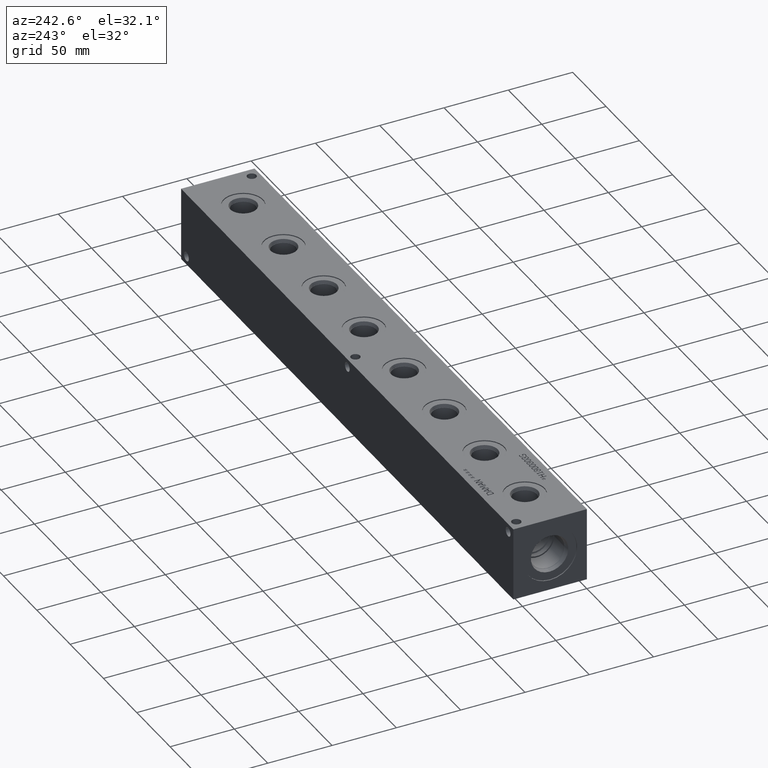
[diagram: clean part render]
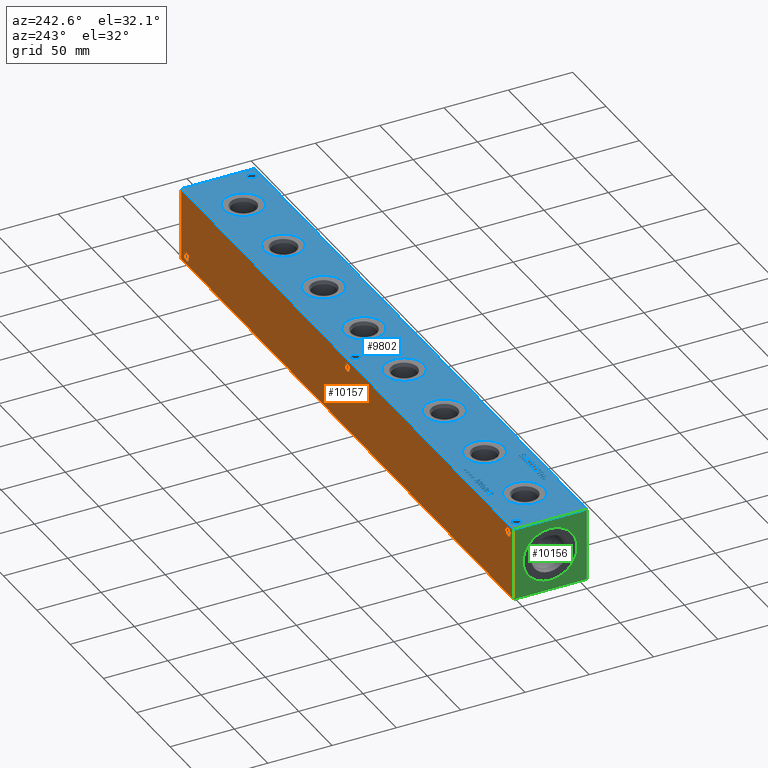
[diagram: same view with three faces highlighted in distinct colors, each labeled with its STEP entity id]
A machine part, auxiliary view with three faces highlighted in distinct colors.
Their STEP definitions:

[orange] entity #10157 — the highlighted planar face has unit normal (0, 1, 0).
#367=CIRCLE('',#10647,3.5687);
#370=CIRCLE('',#10657,3.5687);
#373=CIRCLE('',#10666,3.5687);
#621=FACE_BOUND('',#2020,.T.);
#622=FACE_BOUND('',#2021,.T.);
#623=FACE_BOUND('',#2022,.T.);
#880=PLANE('',#10945);
#1410=FACE_OUTER_BOUND('',#2019,.T.);
#2019=EDGE_LOOP('',(#9154,#9155,#9156,#9157));
#2020=EDGE_LOOP('',(#9158));
#2021=EDGE_LOOP('',(#9159));
#2022=EDGE_LOOP('',(#9160));
#2304=LINE('',#15723,#3119);
#2851=LINE('',#17892,#3666);
#2852=LINE('',#17895,#3667);
#2853=LINE('',#17896,#3668);
#3119=VECTOR('',#11336,10.);
#3666=VECTOR('',#13299,10.);
#3667=VECTOR('',#13302,10.);
#3668=VECTOR('',#13303,10.);
#4250=VERTEX_POINT('',#15720);
#4251=VERTEX_POINT('',#15722);
#4714=VERTEX_POINT('',#17287);
#4719=VERTEX_POINT('',#17305);
#4724=VERTEX_POINT('',#17321);
#4900=VERTEX_POINT('',#17888);
#4902=VERTEX_POINT('',#17894);
#5386=EDGE_CURVE('',#4250,#4251,#2304,.T.);
#6049=EDGE_CURVE('',#4714,#4714,#367,.T.);
#6059=EDGE_CURVE('',#4719,#4719,#370,.T.);
#6068=EDGE_CURVE('',#4724,#4724,#373,.T.);
#6331=EDGE_CURVE('',#4900,#4251,#2851,.T.);
#6332=EDGE_CURVE('',#4902,#4900,#2852,.T.);
#6333=EDGE_CURVE('',#4902,#4250,#2853,.T.);
#9154=ORIENTED_EDGE('',*,*,#6332,.T.);
#9155=ORIENTED_EDGE('',*,*,#6331,.T.);
#9156=ORIENTED_EDGE('',*,*,#5386,.F.);
#9157=ORIENTED_EDGE('',*,*,#6333,.F.);
#9158=ORIENTED_EDGE('',*,*,#6049,.T.);
#9159=ORIENTED_EDGE('',*,*,#6059,.T.);
#9160=ORIENTED_EDGE('',*,*,#6068,.T.);
#10157=ADVANCED_FACE('',(#1410,#621,#622,#623),#880,.T.);
#10647=AXIS2_PLACEMENT_3D('',#17289,#12607,#12608);
#10657=AXIS2_PLACEMENT_3D('',#17307,#12630,#12631);
#10666=AXIS2_PLACEMENT_3D('',#17323,#12650,#12651);
#10945=AXIS2_PLACEMENT_3D('',#17893,#13300,#13301);
#11336=DIRECTION('',(-1.,0.,0.));
#12607=DIRECTION('center_axis',(0.,-1.,0.));
#12608=DIRECTION('ref_axis',(1.,0.,0.));
#12630=DIRECTION('center_axis',(0.,-1.,0.));
#12631=DIRECTION('ref_axis',(1.,0.,0.));
#12650=DIRECTION('center_axis',(0.,-1.,0.));
#12651=DIRECTION('ref_axis',(1.,0.,0.));
#13299=DIRECTION('',(0.,0.,1.));
#13300=DIRECTION('center_axis',(0.,1.,0.));
#13301=DIRECTION('ref_axis',(-1.,0.,0.));
#13302=DIRECTION('',(-1.,0.,0.));
#13303=DIRECTION('',(0.,0.,1.));
#15720=CARTESIAN_POINT('',(498.475,57.15,57.15));
#15722=CARTESIAN_POINT('',(0.,57.15,57.15));
#15723=CARTESIAN_POINT('',(498.475,57.15,57.15));
#17287=CARTESIAN_POINT('',(486.9561,57.15,6.35));
#17289=CARTESIAN_POINT('Origin',(490.5248,57.15,6.35));
#17305=CARTESIAN_POINT('',(4.3561,57.15,50.8));
#17307=CARTESIAN_POINT('Origin',(7.9248,57.15,50.8));
#17321=CARTESIAN_POINT('',(245.6561,57.15,50.8));
#17323=CARTESIAN_POINT('Origin',(249.2248,57.15,50.8));
#17888=CARTESIAN_POINT('',(0.,57.15,0.));
#17892=CARTESIAN_POINT('',(0.,57.15,0.));
#17893=CARTESIAN_POINT('Origin',(498.475,57.15,0.));
#17894=CARTESIAN_POINT('',(498.475,57.15,0.));
#17895=CARTESIAN_POINT('',(498.475,57.15,0.));
#17896=CARTESIAN_POINT('',(498.475,57.15,0.));

[blue] entity #9802 — the highlighted planar face has unit normal (0, 0, 1).
#192=CIRCLE('',#10237,3.5687);
#193=CIRCLE('',#10238,3.5687);
#194=CIRCLE('',#10239,3.5687);
#195=CIRCLE('',#10240,3.5687);
#196=CIRCLE('',#10241,3.5687);
#197=CIRCLE('',#10242,3.5687);
#198=CIRCLE('',#10243,15.3162);
#199=CIRCLE('',#10244,15.3162);
#200=CIRCLE('',#10245,15.3162);
#201=CIRCLE('',#10246,15.3162);
#202=CIRCLE('',#10247,15.3162);
#203=CIRCLE('',#10248,15.3162);
#204=CIRCLE('',#10249,15.3162);
#205=CIRCLE('',#10250,15.3162);
#206=CIRCLE('',#10251,15.3162);
#207=CIRCLE('',#10252,15.3162);
#208=CIRCLE('',#10253,15.3162);
#209=CIRCLE('',#10254,15.3162);
#210=CIRCLE('',#10255,15.3162);
#211=CIRCLE('',#10256,15.3162);
#212=CIRCLE('',#10257,15.3162);
#213=CIRCLE('',#10258,15.3162);
#551=FACE_BOUND('',#1595,.T.);
#552=FACE_BOUND('',#1596,.T.);
#553=FACE_BOUND('',#1597,.T.);
#554=FACE_BOUND('',#1598,.T.);
#555=FACE_BOUND('',#1599,.T.);
#556=FACE_BOUND('',#1600,.T.);
#557=FACE_BOUND('',#1601,.T.);
#558=FACE_BOUND('',#1602,.T.);
#559=FACE_BOUND('',#1603,.T.);
#560=FACE_BOUND('',#1604,.T.);
#561=FACE_BOUND('',#1605,.T.);
#562=FACE_BOUND('',#1606,.T.);
#563=FACE_BOUND('',#1607,.T.);
#564=FACE_BOUND('',#1608,.T.);
#565=FACE_BOUND('',#1609,.T.);
#566=FACE_BOUND('',#1610,.T.);
#567=FACE_BOUND('',#1611,.T.);
#568=FACE_BOUND('',#1612,.T.);
#569=FACE_BOUND('',#1613,.T.);
#570=FACE_BOUND('',#1614,.T.);
#571=FACE_BOUND('',#1615,.T.);
#572=FACE_BOUND('',#1616,.T.);
#573=FACE_BOUND('',#1617,.T.);
#574=FACE_BOUND('',#1618,.T.);
#575=FACE_BOUND('',#1619,.T.);
#576=FACE_BOUND('',#1620,.T.);
#577=FACE_BOUND('',#1621,.T.);
#578=FACE_BOUND('',#1622,.T.);
#579=FACE_BOUND('',#1623,.T.);
#580=FACE_BOUND('',#1624,.T.);
#699=PLANE('',#10236);
#1055=FACE_OUTER_BOUND('',#1594,.T.);
#1594=EDGE_LOOP('',(#7137,#7138,#7139,#7140));
#1595=EDGE_LOOP('',(#7141,#7142,#7143,#7144,#7145,#7146,#7147,#7148,#7149,
#7150,#7151,#7152,#7153,#7154,#7155,#7156,#7157,#7158));
#1596=EDGE_LOOP('',(#7159,#7160,#7161,#7162,#7163,#7164,#7165,#7166,#7167,
#7168,#7169,#7170,#7171,#7172,#7173,#7174,#7175,#7176));
#1597=EDGE_LOOP('',(#7177,#7178,#7179,#7180,#7181,#7182,#7183,#7184,#7185,
#7186,#7187,#7188,#7189));
#1598=EDGE_LOOP('',(#7190,#7191,#7192,#7193,#7194,#7195,#7196,#7197));
#1599=EDGE_LOOP('',(#7198,#7199,#7200,#7201,#7202,#7203,#7204));
#1600=EDGE_LOOP('',(#7205,#7206,#7207,#7208,#7209,#7210,#7211,#7212));
#1601=EDGE_LOOP('',(#7213,#7214,#7215,#7216,#7217,#7218,#7219,#7220,#7221,
#7222));
#1602=EDGE_LOOP('',(#7223,#7224,#7225,#7226,#7227,#7228,#7229,#7230,#7231,
#7232,#7233,#7234,#7235,#7236,#7237,#7238,#7239,#7240));
#1603=EDGE_LOOP('',(#7241,#7242,#7243,#7244,#7245,#7246,#7247,#7248,#7249,
#7250,#7251,#7252,#7253,#7254,#7255,#7256,#7257,#7258));
#1604=EDGE_LOOP('',(#7259,#7260));
#1605=EDGE_LOOP('',(#7261,#7262));
#1606=EDGE_LOOP('',(#7263,#7264));
#1607=EDGE_LOOP('',(#7265,#7266));
#1608=EDGE_LOOP('',(#7267,#7268));
#1609=EDGE_LOOP('',(#7269,#7270));
#1610=EDGE_LOOP('',(#7271,#7272));
#1611=EDGE_LOOP('',(#7273,#7274));
#1612=EDGE_LOOP('',(#7275,#7276));
#1613=EDGE_LOOP('',(#7277,#7278));
#1614=EDGE_LOOP('',(#7279,#7280));
#1615=EDGE_LOOP('',(#7281,#7282,#7283,#7284,#7285,#7286,#7287,#7288,#7289,
#7290,#7291,#7292,#7293,#7294,#7295,#7296,#7297,#7298,#7299,#7300));
#1616=EDGE_LOOP('',(#7301,#7302,#7303,#7304,#7305,#7306,#7307,#7308,#7309,
#7310,#7311));
#1617=EDGE_LOOP('',(#7312,#7313,#7314,#7315));
#1618=EDGE_LOOP('',(#7316,#7317,#7318,#7319));
#1619=EDGE_LOOP('',(#7320,#7321,#7322,#7323,#7324,#7325,#7326,#7327,#7328,
#7329,#7330));
#1620=EDGE_LOOP('',(#7331,#7332,#7333,#7334,#7335,#7336,#7337,#7338,#7339,
#7340,#7341,#7342,#7343,#7344,#7345,#7346,#7347,#7348));
#1621=EDGE_LOOP('',(#7349,#7350,#7351,#7352,#7353,#7354,#7355,#7356,#7357,
#7358,#7359,#7360));
#1622=EDGE_LOOP('',(#7361,#7362,#7363,#7364,#7365,#7366,#7367,#7368,#7369,
#7370,#7371));
#1623=EDGE_LOOP('',(#7372,#7373,#7374,#7375));
#1624=EDGE_LOOP('',(#7376,#7377,#7378,#7379,#7380,#7381,#7382,#7383,#7384,
#7385,#7386));
#2055=LINE('',#13549,#2870);
#2062=LINE('',#13631,#2877);
#2092=LINE('',#14152,#2907);
#2099=LINE('',#14234,#2914);
#2104=LINE('',#14296,#2919);
#2108=LINE('',#14304,#2923);
#2111=LINE('',#14310,#2926);
#2114=LINE('',#14316,#2929);
#2117=LINE('',#14322,#2932);
#2120=LINE('',#14328,#2935);
#2123=LINE('',#14334,#2938);
#2126=LINE('',#14340,#2941);
#2129=LINE('',#14346,#2944);
#2132=LINE('',#14352,#2947);
#2135=LINE('',#14358,#2950);
#2138=LINE('',#14363,#2953);
#2140=LINE('',#14369,#2955);
#2144=LINE('',#14377,#2959);
#2147=LINE('',#14383,#2962);
#2150=LINE('',#14389,#2965);
#2153=LINE('',#14395,#2968);
#2156=LINE('',#14401,#2971);
#2159=LINE('',#14407,#2974);
#2162=LINE('',#14413,#2977);
#2165=LINE('',#14419,#2980);
#2168=LINE('',#14425,#2983);
#2171=LINE('',#14431,#2986);
#2174=LINE('',#14437,#2989);
#2177=LINE('',#14443,#2992);
#2180=LINE('',#14449,#2995);
#2183=LINE('',#14455,#2998);
#2186=LINE('',#14461,#3001);
#2189=LINE('',#14467,#3004);
#2192=LINE('',#14472,#3007);
#2194=LINE('',#14478,#3009);
#2198=LINE('',#14486,#3013);
#2201=LINE('',#14492,#3016);
#2204=LINE('',#14498,#3019);
#2208=LINE('',#14523,#3023);
#2211=LINE('',#14529,#3026);
#2214=LINE('',#14535,#3029);
#2217=LINE('',#14541,#3032);
#2220=LINE('',#14547,#3035);
#2223=LINE('',#14552,#3038);
#2262=LINE('',#15246,#3077);
#2269=LINE('',#15328,#3084);
#2282=LINE('',#15525,#3097);
#2285=LINE('',#15531,#3100);
#2296=LINE('',#15689,#3111);
#2299=LINE('',#15695,#3114);
#2302=LINE('',#15719,#3117);
#2303=LINE('',#15721,#3118);
#2304=LINE('',#15723,#3119);
#2305=LINE('',#15724,#3120);
#2306=LINE('',#15727,#3121);
#2307=LINE('',#15729,#3122);
#2308=LINE('',#15731,#3123);
#2309=LINE('',#15733,#3124);
#2310=LINE('',#15735,#3125);
#2311=LINE('',#15737,#3126);
#2312=LINE('',#15739,#3127);
#2313=LINE('',#15741,#3128);
#2314=LINE('',#15743,#3129);
#2315=LINE('',#15745,#3130);
#2316=LINE('',#15747,#3131);
#2317=LINE('',#15749,#3132);
#2318=LINE('',#15751,#3133);
#2319=LINE('',#15753,#3134);
#2320=LINE('',#15755,#3135);
#2321=LINE('',#15757,#3136);
#2322=LINE('',#15759,#3137);
#2323=LINE('',#15760,#3138);
#2324=LINE('',#15763,#3139);
#2325=LINE('',#15765,#3140);
#2326=LINE('',#15767,#3141);
#2327=LINE('',#15769,#3142);
#2328=LINE('',#15771,#3143);
#2329=LINE('',#15773,#3144);
#2330=LINE('',#15775,#3145);
#2331=LINE('',#15777,#3146);
#2332=LINE('',#15779,#3147);
#2333=LINE('',#15781,#3148);
#2334=LINE('',#15783,#3149);
#2335=LINE('',#15785,#3150);
#2336=LINE('',#15787,#3151);
#2337=LINE('',#15789,#3152);
#2338=LINE('',#15791,#3153);
#2339=LINE('',#15793,#3154);
#2340=LINE('',#15795,#3155);
#2341=LINE('',#15796,#3156);
#2342=LINE('',#15799,#3157);
#2343=LINE('',#15801,#3158);
#2344=LINE('',#15803,#3159);
#2345=LINE('',#15805,#3160);
#2346=LINE('',#15807,#3161);
#2347=LINE('',#15809,#3162);
#2348=LINE('',#15811,#3163);
#2349=LINE('',#15813,#3164);
#2350=LINE('',#15815,#3165);
#2351=LINE('',#15817,#3166);
#2352=LINE('',#15819,#3167);
#2353=LINE('',#15821,#3168);
#2354=LINE('',#15822,#3169);
#2355=LINE('',#15825,#3170);
#2356=LINE('',#15827,#3171);
#2357=LINE('',#15829,#3172);
#2358=LINE('',#15831,#3173);
#2359=LINE('',#15833,#3174);
#2360=LINE('',#15835,#3175);
#2361=LINE('',#15837,#3176);
#2362=LINE('',#15838,#3177);
#2363=LINE('',#15856,#3178);
#2364=LINE('',#15858,#3179);
#2365=LINE('',#15860,#3180);
#2366=LINE('',#15867,#3181);
#2367=LINE('',#15869,#3182);
#2368=LINE('',#15871,#3183);
#2369=LINE('',#15873,#3184);
#2370=LINE('',#15875,#3185);
#2371=LINE('',#15877,#3186);
#2372=LINE('',#15879,#3187);
#2373=LINE('',#15880,#3188);
#2374=LINE('',#15883,#3189);
#2375=LINE('',#15885,#3190);
#2376=LINE('',#15887,#3191);
#2377=LINE('',#15889,#3192);
#2378=LINE('',#15891,#3193);
#2379=LINE('',#15893,#3194);
#2380=LINE('',#15895,#3195);
#2381=LINE('',#15897,#3196);
#2382=LINE('',#15899,#3197);
#2383=LINE('',#15900,#3198);
#2384=LINE('',#15903,#3199);
#2385=LINE('',#15905,#3200);
#2386=LINE('',#15907,#3201);
#2387=LINE('',#15909,#3202);
#2388=LINE('',#15911,#3203);
#2389=LINE('',#15913,#3204);
#2390=LINE('',#15915,#3205);
#2391=LINE('',#15917,#3206);
#2392=LINE('',#15919,#3207);
#2393=LINE('',#15921,#3208);
#2394=LINE('',#15923,#3209);
#2395=LINE('',#15925,#3210);
#2396=LINE('',#15927,#3211);
#2397=LINE('',#15929,#3212);
#2398=LINE('',#15931,#3213);
#2399=LINE('',#15933,#3214);
#2400=LINE('',#15935,#3215);
#2401=LINE('',#15936,#3216);
#2402=LINE('',#15939,#3217);
#2403=LINE('',#15941,#3218);
#2404=LINE('',#15943,#3219);
#2405=LINE('',#15945,#3220);
#2406=LINE('',#15947,#3221);
#2407=LINE('',#15949,#3222);
#2408=LINE('',#15951,#3223);
#2409=LINE('',#15953,#3224);
#2410=LINE('',#15955,#3225);
#2411=LINE('',#15957,#3226);
#2412=LINE('',#15959,#3227);
#2413=LINE('',#15961,#3228);
#2414=LINE('',#15963,#3229);
#2415=LINE('',#15965,#3230);
#2416=LINE('',#15967,#3231);
#2417=LINE('',#15969,#3232);
#2418=LINE('',#15971,#3233);
#2419=LINE('',#15972,#3234);
#2870=VECTOR('',#10967,10.);
#2877=VECTOR('',#10976,10.);
#2907=VECTOR('',#11012,10.);
#2914=VECTOR('',#11021,10.);
#2919=VECTOR('',#11030,10.);
#2923=VECTOR('',#11036,10.);
#2926=VECTOR('',#11041,10.);
#2929=VECTOR('',#11046,10.);
#2932=VECTOR('',#11051,10.);
#2935=VECTOR('',#11056,10.);
#2938=VECTOR('',#11061,10.);
#2941=VECTOR('',#11066,10.);
#2944=VECTOR('',#11071,10.);
#2947=VECTOR('',#11076,10.);
#2950=VECTOR('',#11081,10.);
#2953=VECTOR('',#11086,10.);
#2955=VECTOR('',#11092,10.);
#2959=VECTOR('',#11098,10.);
#2962=VECTOR('',#11103,10.);
#2965=VECTOR('',#11108,10.);
#2968=VECTOR('',#11113,10.);
#2971=VECTOR('',#11118,10.);
#2974=VECTOR('',#11123,10.);
#2977=VECTOR('',#11128,10.);
#2980=VECTOR('',#11133,10.);
#2983=VECTOR('',#11138,10.);
#2986=VECTOR('',#11143,10.);
#2989=VECTOR('',#11148,10.);
#2992=VECTOR('',#11153,10.);
#2995=VECTOR('',#11158,10.);
#2998=VECTOR('',#11163,10.);
#3001=VECTOR('',#11168,10.);
#3004=VECTOR('',#11173,10.);
#3007=VECTOR('',#11178,10.);
#3009=VECTOR('',#11184,10.);
#3013=VECTOR('',#11190,10.);
#3016=VECTOR('',#11195,10.);
#3019=VECTOR('',#11200,10.);
#3023=VECTOR('',#11206,10.);
#3026=VECTOR('',#11211,10.);
#3029=VECTOR('',#11216,10.);
#3032=VECTOR('',#11221,10.);
#3035=VECTOR('',#11226,10.);
#3038=VECTOR('',#11231,10.);
#3077=VECTOR('',#11278,10.);
#3084=VECTOR('',#11287,10.);
#3097=VECTOR('',#11304,10.);
#3100=VECTOR('',#11309,10.);
#3111=VECTOR('',#11322,10.);
#3114=VECTOR('',#11327,10.);
#3117=VECTOR('',#11334,10.);
#3118=VECTOR('',#11335,10.);
#3119=VECTOR('',#11336,10.);
#3120=VECTOR('',#11337,10.);
#3121=VECTOR('',#11338,10.);
#3122=VECTOR('',#11339,10.);
#3123=VECTOR('',#11340,10.);
#3124=VECTOR('',#11341,10.);
#3125=VECTOR('',#11342,10.);
#3126=VECTOR('',#11343,10.);
#3127=VECTOR('',#11344,10.);
#3128=VECTOR('',#11345,10.);
#3129=VECTOR('',#11346,10.);
#3130=VECTOR('',#11347,10.);
#3131=VECTOR('',#11348,10.);
#3132=VECTOR('',#11349,10.);
#3133=VECTOR('',#11350,10.);
#3134=VECTOR('',#11351,10.);
#3135=VECTOR('',#11352,10.);
#3136=VECTOR('',#11353,10.);
#3137=VECTOR('',#11354,10.);
#3138=VECTOR('',#11355,10.);
#3139=VECTOR('',#11356,10.);
#3140=VECTOR('',#11357,10.);
#3141=VECTOR('',#11358,10.);
#3142=VECTOR('',#11359,10.);
#3143=VECTOR('',#11360,10.);
#3144=VECTOR('',#11361,10.);
#3145=VECTOR('',#11362,10.);
#3146=VECTOR('',#11363,10.);
#3147=VECTOR('',#11364,10.);
#3148=VECTOR('',#11365,10.);
#3149=VECTOR('',#11366,10.);
#3150=VECTOR('',#11367,10.);
#3151=VECTOR('',#11368,10.);
#3152=VECTOR('',#11369,10.);
#3153=VECTOR('',#11370,10.);
#3154=VECTOR('',#11371,10.);
#3155=VECTOR('',#11372,10.);
#3156=VECTOR('',#11373,10.);
#3157=VECTOR('',#11374,10.);
#3158=VECTOR('',#11375,10.);
#3159=VECTOR('',#11376,10.);
#3160=VECTOR('',#11377,10.);
#3161=VECTOR('',#11378,10.);
#3162=VECTOR('',#11379,10.);
#3163=VECTOR('',#11380,10.);
#3164=VECTOR('',#11381,10.);
#3165=VECTOR('',#11382,10.);
#3166=VECTOR('',#11383,10.);
#3167=VECTOR('',#11384,10.);
#3168=VECTOR('',#11385,10.);
#3169=VECTOR('',#11386,10.);
#3170=VECTOR('',#11387,10.);
#3171=VECTOR('',#11388,10.);
#3172=VECTOR('',#11389,10.);
#3173=VECTOR('',#11390,10.);
#3174=VECTOR('',#11391,10.);
#3175=VECTOR('',#11392,10.);
#3176=VECTOR('',#11393,10.);
#3177=VECTOR('',#11394,10.);
#3178=VECTOR('',#11395,10.);
#3179=VECTOR('',#11396,10.);
#3180=VECTOR('',#11397,10.);
#3181=VECTOR('',#11398,10.);
#3182=VECTOR('',#11399,10.);
#3183=VECTOR('',#11400,10.);
#3184=VECTOR('',#11401,10.);
#3185=VECTOR('',#11402,10.);
#3186=VECTOR('',#11403,10.);
#3187=VECTOR('',#11404,10.);
#3188=VECTOR('',#11405,10.);
#3189=VECTOR('',#11406,10.);
#3190=VECTOR('',#11407,10.);
#3191=VECTOR('',#11408,10.);
#3192=VECTOR('',#11409,10.);
#3193=VECTOR('',#11410,10.);
#3194=VECTOR('',#11411,10.);
#3195=VECTOR('',#11412,10.);
#3196=VECTOR('',#11413,10.);
#3197=VECTOR('',#11414,10.);
#3198=VECTOR('',#11415,10.);
#3199=VECTOR('',#11416,10.);
#3200=VECTOR('',#11417,10.);
#3201=VECTOR('',#11418,10.);
#3202=VECTOR('',#11419,10.);
#3203=VECTOR('',#11420,10.);
#3204=VECTOR('',#11421,10.);
#3205=VECTOR('',#11422,10.);
#3206=VECTOR('',#11423,10.);
#3207=VECTOR('',#11424,10.);
#3208=VECTOR('',#11425,10.);
#3209=VECTOR('',#11426,10.);
#3210=VECTOR('',#11427,10.);
#3211=VECTOR('',#11428,10.);
#3212=VECTOR('',#11429,10.);
#3213=VECTOR('',#11430,10.);
#3214=VECTOR('',#11431,10.);
#3215=VECTOR('',#11432,10.);
#3216=VECTOR('',#11433,10.);
#3217=VECTOR('',#11434,10.);
#3218=VECTOR('',#11435,10.);
#3219=VECTOR('',#11436,10.);
#3220=VECTOR('',#11437,10.);
#3221=VECTOR('',#11438,10.);
#3222=VECTOR('',#11439,10.);
#3223=VECTOR('',#11440,10.);
#3224=VECTOR('',#11441,10.);
#3225=VECTOR('',#11442,10.);
#3226=VECTOR('',#11443,10.);
#3227=VECTOR('',#11444,10.);
#3228=VECTOR('',#11445,10.);
#3229=VECTOR('',#11446,10.);
#3230=VECTOR('',#11447,10.);
#3231=VECTOR('',#11448,10.);
#3232=VECTOR('',#11449,10.);
#3233=VECTOR('',#11450,10.);
#3234=VECTOR('',#11451,10.);
#3692=B_SPLINE_CURVE_WITH_KNOTS('',2,(#13516,#13517,#13518,#13519),
 .UNSPECIFIED.,.F.,.F.,(3,1,3),(0.,1.,2.),.UNSPECIFIED.);
#3694=B_SPLINE_CURVE_WITH_KNOTS('',2,(#13537,#13538,#13539,#13540),
 .UNSPECIFIED.,.F.,.F.,(3,1,3),(0.,1.,2.),.UNSPECIFIED.);
#3696=B_SPLINE_CURVE_WITH_KNOTS('',2,(#13562,#13563,#13564,#13565),
 .UNSPECIFIED.,.F.,.F.,(3,1,3),(0.,1.,2.),.UNSPECIFIED.);
#3698=B_SPLINE_CURVE_WITH_KNOTS('',2,(#13581,#13582,#13583,#13584),
 .UNSPECIFIED.,.F.,.F.,(3,1,3),(0.,1.,2.),.UNSPECIFIED.);
#3700=B_SPLINE_CURVE_WITH_KNOTS('',2,(#13600,#13601,#13602,#13603),
 .UNSPECIFIED.,.F.,.F.,(3,1,3),(0.,1.,2.),.UNSPECIFIED.);
#3702=B_SPLINE_CURVE_WITH_KNOTS('',2,(#13619,#13620,#13621,#13622),
 .UNSPECIFIED.,.F.,.F.,(3,1,3),(0.,1.,2.),.UNSPECIFIED.);
#3704=B_SPLINE_CURVE_WITH_KNOTS('',2,(#13644,#13645,#13646,#13647),
 .UNSPECIFIED.,.F.,.F.,(3,1,3),(0.,1.,2.),.UNSPECIFIED.);
#3706=B_SPLINE_CURVE_WITH_KNOTS('',2,(#13663,#13664,#13665,#13666),
 .UNSPECIFIED.,.F.,.F.,(3,1,3),(0.,1.,2.),.UNSPECIFIED.);
#3708=B_SPLINE_CURVE_WITH_KNOTS('',2,(#13681,#13682,#13683,#13684),
 .UNSPECIFIED.,.F.,.F.,(3,1,3),(0.,1.,2.),.UNSPECIFIED.);
#3726=B_SPLINE_CURVE_WITH_KNOTS('',2,(#13852,#13853,#13854,#13855),
 .UNSPECIFIED.,.F.,.F.,(3,1,3),(0.,1.,2.),.UNSPECIFIED.);
#3728=B_SPLINE_CURVE_WITH_KNOTS('',2,(#13873,#13874,#13875,#13876),
 .UNSPECIFIED.,.F.,.F.,(3,1,3),(0.,1.,2.),.UNSPECIFIED.);
#3730=B_SPLINE_CURVE_WITH_KNOTS('',2,(#13892,#13893,#13894,#13895),
 .UNSPECIFIED.,.F.,.F.,(3,1,3),(0.,1.,2.),.UNSPECIFIED.);
#3732=B_SPLINE_CURVE_WITH_KNOTS('',2,(#13910,#13911,#13912,#13913),
 .UNSPECIFIED.,.F.,.F.,(3,1,3),(0.,1.,2.),.UNSPECIFIED.);
#3754=B_SPLINE_CURVE_WITH_KNOTS('',2,(#14119,#14120,#14121,#14122),
 .UNSPECIFIED.,.F.,.F.,(3,1,3),(0.,1.,2.),.UNSPECIFIED.);
#3756=B_SPLINE_CURVE_WITH_KNOTS('',2,(#14140,#14141,#14142,#14143),
 .UNSPECIFIED.,.F.,.F.,(3,1,3),(0.,1.,2.),.UNSPECIFIED.);
#3758=B_SPLINE_CURVE_WITH_KNOTS('',2,(#14165,#14166,#14167,#14168),
 .UNSPECIFIED.,.F.,.F.,(3,1,3),(0.,1.,2.),.UNSPECIFIED.);
#3760=B_SPLINE_CURVE_WITH_KNOTS('',2,(#14184,#14185,#14186,#14187),
 .UNSPECIFIED.,.F.,.F.,(3,1,3),(0.,1.,2.),.UNSPECIFIED.);
#3762=B_SPLINE_CURVE_WITH_KNOTS('',2,(#14203,#14204,#14205,#14206),
 .UNSPECIFIED.,.F.,.F.,(3,1,3),(0.,1.,2.),.UNSPECIFIED.);
#3764=B_SPLINE_CURVE_WITH_KNOTS('',2,(#14222,#14223,#14224,#14225),
 .UNSPECIFIED.,.F.,.F.,(3,1,3),(0.,1.,2.),.UNSPECIFIED.);
#3766=B_SPLINE_CURVE_WITH_KNOTS('',2,(#14247,#14248,#14249,#14250),
 .UNSPECIFIED.,.F.,.F.,(3,1,3),(0.,1.,2.),.UNSPECIFIED.);
#3768=B_SPLINE_CURVE_WITH_KNOTS('',2,(#14266,#14267,#14268,#14269),
 .UNSPECIFIED.,.F.,.F.,(3,1,3),(0.,1.,2.),.UNSPECIFIED.);
#3770=B_SPLINE_CURVE_WITH_KNOTS('',2,(#14284,#14285,#14286,#14287),
 .UNSPECIFIED.,.F.,.F.,(3,1,3),(0.,1.,2.),.UNSPECIFIED.);
#3772=B_SPLINE_CURVE_WITH_KNOTS('',2,(#14511,#14512,#14513,#14514),
 .UNSPECIFIED.,.F.,.F.,(3,1,3),(0.,1.,2.),.UNSPECIFIED.);
#3790=B_SPLINE_CURVE_WITH_KNOTS('',2,(#14717,#14718,#14719,#14720),
 .UNSPECIFIED.,.F.,.F.,(3,1,3),(0.,1.,2.),.UNSPECIFIED.);
#3792=B_SPLINE_CURVE_WITH_KNOTS('',2,(#14738,#14739,#14740,#14741),
 .UNSPECIFIED.,.F.,.F.,(3,1,3),(0.,1.,2.),.UNSPECIFIED.);
#3794=B_SPLINE_CURVE_WITH_KNOTS('',2,(#14757,#14758,#14759,#14760),
 .UNSPECIFIED.,.F.,.F.,(3,1,3),(0.,1.,2.),.UNSPECIFIED.);
#3796=B_SPLINE_CURVE_WITH_KNOTS('',2,(#14775,#14776,#14777,#14778),
 .UNSPECIFIED.,.F.,.F.,(3,1,3),(0.,1.,2.),.UNSPECIFIED.);
#3814=B_SPLINE_CURVE_WITH_KNOTS('',2,(#14946,#14947,#14948,#14949),
 .UNSPECIFIED.,.F.,.F.,(3,1,3),(0.,1.,2.),.UNSPECIFIED.);
#3816=B_SPLINE_CURVE_WITH_KNOTS('',2,(#14967,#14968,#14969,#14970),
 .UNSPECIFIED.,.F.,.F.,(3,1,3),(0.,1.,2.),.UNSPECIFIED.);
#3818=B_SPLINE_CURVE_WITH_KNOTS('',2,(#14986,#14987,#14988,#14989),
 .UNSPECIFIED.,.F.,.F.,(3,1,3),(0.,1.,2.),.UNSPECIFIED.);
#3820=B_SPLINE_CURVE_WITH_KNOTS('',2,(#15004,#15005,#15006,#15007),
 .UNSPECIFIED.,.F.,.F.,(3,1,3),(0.,1.,2.),.UNSPECIFIED.);
#3842=B_SPLINE_CURVE_WITH_KNOTS('',2,(#15213,#15214,#15215,#15216),
 .UNSPECIFIED.,.F.,.F.,(3,1,3),(0.,1.,2.),.UNSPECIFIED.);
#3844=B_SPLINE_CURVE_WITH_KNOTS('',2,(#15234,#15235,#15236,#15237),
 .UNSPECIFIED.,.F.,.F.,(3,1,3),(0.,1.,2.),.UNSPECIFIED.);
#3846=B_SPLINE_CURVE_WITH_KNOTS('',2,(#15259,#15260,#15261,#15262),
 .UNSPECIFIED.,.F.,.F.,(3,1,3),(0.,1.,2.),.UNSPECIFIED.);
#3848=B_SPLINE_CURVE_WITH_KNOTS('',2,(#15278,#15279,#15280,#15281),
 .UNSPECIFIED.,.F.,.F.,(3,1,3),(0.,1.,2.),.UNSPECIFIED.);
#3850=B_SPLINE_CURVE_WITH_KNOTS('',2,(#15297,#15298,#15299,#15300),
 .UNSPECIFIED.,.F.,.F.,(3,1,3),(0.,1.,2.),.UNSPECIFIED.);
#3852=B_SPLINE_CURVE_WITH_KNOTS('',2,(#15316,#15317,#15318,#15319),
 .UNSPECIFIED.,.F.,.F.,(3,1,3),(0.,1.,2.),.UNSPECIFIED.);
#3854=B_SPLINE_CURVE_WITH_KNOTS('',2,(#15341,#15342,#15343,#15344),
 .UNSPECIFIED.,.F.,.F.,(3,1,3),(0.,1.,2.),.UNSPECIFIED.);
#3856=B_SPLINE_CURVE_WITH_KNOTS('',2,(#15360,#15361,#15362,#15363),
 .UNSPECIFIED.,.F.,.F.,(3,1,3),(0.,1.,2.),.UNSPECIFIED.);
#3858=B_SPLINE_CURVE_WITH_KNOTS('',2,(#15378,#15379,#15380,#15381),
 .UNSPECIFIED.,.F.,.F.,(3,1,3),(0.,1.,2.),.UNSPECIFIED.);
#3860=B_SPLINE_CURVE_WITH_KNOTS('',2,(#15397,#15398,#15399,#15400),
 .UNSPECIFIED.,.F.,.F.,(3,1,3),(0.,1.,2.),.UNSPECIFIED.);
#3862=B_SPLINE_CURVE_WITH_KNOTS('',2,(#15418,#15419,#15420,#15421),
 .UNSPECIFIED.,.F.,.F.,(3,1,3),(0.,1.,2.),.UNSPECIFIED.);
#3864=B_SPLINE_CURVE_WITH_KNOTS('',2,(#15437,#15438,#15439,#15440),
 .UNSPECIFIED.,.F.,.F.,(3,1,3),(0.,1.,2.),.UNSPECIFIED.);
#3866=B_SPLINE_CURVE_WITH_KNOTS('',2,(#15456,#15457,#15458,#15459),
 .UNSPECIFIED.,.F.,.F.,(3,1,3),(0.,1.,2.),.UNSPECIFIED.);
#3868=B_SPLINE_CURVE_WITH_KNOTS('',2,(#15475,#15476,#15477,#15478),
 .UNSPECIFIED.,.F.,.F.,(3,1,3),(0.,1.,2.),.UNSPECIFIED.);
#3870=B_SPLINE_CURVE_WITH_KNOTS('',2,(#15494,#15495,#15496,#15497),
 .UNSPECIFIED.,.F.,.F.,(3,1,3),(0.,1.,2.),.UNSPECIFIED.);
#3872=B_SPLINE_CURVE_WITH_KNOTS('',2,(#15513,#15514,#15515,#15516),
 .UNSPECIFIED.,.F.,.F.,(3,1,3),(0.,1.,2.),.UNSPECIFIED.);
#3874=B_SPLINE_CURVE_WITH_KNOTS('',2,(#15544,#15545,#15546,#15547),
 .UNSPECIFIED.,.F.,.F.,(3,1,3),(0.,1.,2.),.UNSPECIFIED.);
#3876=B_SPLINE_CURVE_WITH_KNOTS('',2,(#15563,#15564,#15565,#15566),
 .UNSPECIFIED.,.F.,.F.,(3,1,3),(0.,1.,2.),.UNSPECIFIED.);
#3878=B_SPLINE_CURVE_WITH_KNOTS('',2,(#15582,#15583,#15584,#15585),
 .UNSPECIFIED.,.F.,.F.,(3,1,3),(0.,1.,2.),.UNSPECIFIED.);
#3880=B_SPLINE_CURVE_WITH_KNOTS('',2,(#15601,#15602,#15603,#15604),
 .UNSPECIFIED.,.F.,.F.,(3,1,3),(0.,1.,2.),.UNSPECIFIED.);
#3882=B_SPLINE_CURVE_WITH_KNOTS('',2,(#15620,#15621,#15622,#15623),
 .UNSPECIFIED.,.F.,.F.,(3,1,3),(0.,1.,2.),.UNSPECIFIED.);
#3884=B_SPLINE_CURVE_WITH_KNOTS('',2,(#15639,#15640,#15641,#15642),
 .UNSPECIFIED.,.F.,.F.,(3,1,3),(0.,1.,2.),.UNSPECIFIED.);
#3886=B_SPLINE_CURVE_WITH_KNOTS('',2,(#15658,#15659,#15660,#15661),
 .UNSPECIFIED.,.F.,.F.,(3,1,3),(0.,1.,2.),.UNSPECIFIED.);
#3888=B_SPLINE_CURVE_WITH_KNOTS('',2,(#15677,#15678,#15679,#15680),
 .UNSPECIFIED.,.F.,.F.,(3,1,3),(0.,1.,2.),.UNSPECIFIED.);
#3890=B_SPLINE_CURVE_WITH_KNOTS('',2,(#15707,#15708,#15709,#15710),
 .UNSPECIFIED.,.F.,.F.,(3,1,3),(0.,1.,2.),.UNSPECIFIED.);
#3892=B_SPLINE_CURVE_WITH_KNOTS('',2,(#15841,#15842,#15843,#15844),
 .UNSPECIFIED.,.F.,.F.,(3,1,3),(0.,1.,2.),.UNSPECIFIED.);
#3893=B_SPLINE_CURVE_WITH_KNOTS('',2,(#15846,#15847,#15848,#15849),
 .UNSPECIFIED.,.F.,.F.,(3,1,3),(0.,1.,2.),.UNSPECIFIED.);
#3894=B_SPLINE_CURVE_WITH_KNOTS('',2,(#15851,#15852,#15853,#15854),
 .UNSPECIFIED.,.F.,.F.,(3,1,3),(0.,1.,2.),.UNSPECIFIED.);
#3895=B_SPLINE_CURVE_WITH_KNOTS('',2,(#15861,#15862,#15863,#15864),
 .UNSPECIFIED.,.F.,.F.,(3,1,3),(0.,1.,2.),.UNSPECIFIED.);
#3948=VERTEX_POINT('',#13514);
#3949=VERTEX_POINT('',#13515);
#3952=VERTEX_POINT('',#13536);
#3954=VERTEX_POINT('',#13548);
#3956=VERTEX_POINT('',#13561);
#3958=VERTEX_POINT('',#13580);
#3960=VERTEX_POINT('',#13599);
#3962=VERTEX_POINT('',#13618);
#3964=VERTEX_POINT('',#13630);
#3966=VERTEX_POINT('',#13643);
#3968=VERTEX_POINT('',#13662);
#3986=VERTEX_POINT('',#13850);
#3987=VERTEX_POINT('',#13851);
#3990=VERTEX_POINT('',#13872);
#3992=VERTEX_POINT('',#13891);
#4014=VERTEX_POINT('',#14117);
#4015=VERTEX_POINT('',#14118);
#4018=VERTEX_POINT('',#14139);
#4020=VERTEX_POINT('',#14151);
#4022=VERTEX_POINT('',#14164);
#4024=VERTEX_POINT('',#14183);
#4026=VERTEX_POINT('',#14202);
#4028=VERTEX_POINT('',#14221);
#4030=VERTEX_POINT('',#14233);
#4032=VERTEX_POINT('',#14246);
#4034=VERTEX_POINT('',#14265);
#4036=VERTEX_POINT('',#14294);
#4037=VERTEX_POINT('',#14295);
#4040=VERTEX_POINT('',#14303);
#4042=VERTEX_POINT('',#14309);
#4044=VERTEX_POINT('',#14315);
#4046=VERTEX_POINT('',#14321);
#4048=VERTEX_POINT('',#14327);
#4050=VERTEX_POINT('',#14333);
#4052=VERTEX_POINT('',#14339);
#4054=VERTEX_POINT('',#14345);
#4056=VERTEX_POINT('',#14351);
#4058=VERTEX_POINT('',#14357);
#4060=VERTEX_POINT('',#14367);
#4061=VERTEX_POINT('',#14368);
#4064=VERTEX_POINT('',#14376);
#4066=VERTEX_POINT('',#14382);
#4068=VERTEX_POINT('',#14388);
#4070=VERTEX_POINT('',#14394);
#4072=VERTEX_POINT('',#14400);
#4074=VERTEX_POINT('',#14406);
#4076=VERTEX_POINT('',#14412);
#4078=VERTEX_POINT('',#14418);
#4080=VERTEX_POINT('',#14424);
#4082=VERTEX_POINT('',#14430);
#4084=VERTEX_POINT('',#14436);
#4086=VERTEX_POINT('',#14442);
#4088=VERTEX_POINT('',#14448);
#4090=VERTEX_POINT('',#14454);
#4092=VERTEX_POINT('',#14460);
#4094=VERTEX_POINT('',#14466);
#4096=VERTEX_POINT('',#14476);
#4097=VERTEX_POINT('',#14477);
#4100=VERTEX_POINT('',#14485);
#4102=VERTEX_POINT('',#14491);
#4104=VERTEX_POINT('',#14497);
#4106=VERTEX_POINT('',#14510);
#4108=VERTEX_POINT('',#14522);
#4110=VERTEX_POINT('',#14528);
#4112=VERTEX_POINT('',#14534);
#4114=VERTEX_POINT('',#14540);
#4116=VERTEX_POINT('',#14546);
#4134=VERTEX_POINT('',#14715);
#4135=VERTEX_POINT('',#14716);
#4138=VERTEX_POINT('',#14737);
#4140=VERTEX_POINT('',#14756);
#4158=VERTEX_POINT('',#14944);
#4159=VERTEX_POINT('',#14945);
#4162=VERTEX_POINT('',#14966);
#4164=VERTEX_POINT('',#14985);
#4186=VERTEX_POINT('',#15211);
#4187=VERTEX_POINT('',#15212);
#4190=VERTEX_POINT('',#15233);
#4192=VERTEX_POINT('',#15245);
#4194=VERTEX_POINT('',#15258);
#4196=VERTEX_POINT('',#15277);
#4198=VERTEX_POINT('',#15296);
#4200=VERTEX_POINT('',#15315);
#4202=VERTEX_POINT('',#15327);
#4204=VERTEX_POINT('',#15340);
#4206=VERTEX_POINT('',#15359);
#4208=VERTEX_POINT('',#15395);
#4209=VERTEX_POINT('',#15396);
#4212=VERTEX_POINT('',#15417);
#4214=VERTEX_POINT('',#15436);
#4216=VERTEX_POINT('',#15455);
#4218=VERTEX_POINT('',#15474);
#4220=VERTEX_POINT('',#15493);
#4222=VERTEX_POINT('',#15512);
#4224=VERTEX_POINT('',#15524);
#4226=VERTEX_POINT('',#15530);
#4228=VERTEX_POINT('',#15543);
#4230=VERTEX_POINT('',#15562);
#4232=VERTEX_POINT('',#15581);
#4234=VERTEX_POINT('',#15600);
#4236=VERTEX_POINT('',#15619);
#4238=VERTEX_POINT('',#15638);
#4240=VERTEX_POINT('',#15657);
#4242=VERTEX_POINT('',#15676);
#4244=VERTEX_POINT('',#15688);
#4246=VERTEX_POINT('',#15694);
#4248=VERTEX_POINT('',#15717);
#4249=VERTEX_POINT('',#15718);
#4250=VERTEX_POINT('',#15720);
#4251=VERTEX_POINT('',#15722);
#4252=VERTEX_POINT('',#15725);
#4253=VERTEX_POINT('',#15726);
#4254=VERTEX_POINT('',#15728);
#4255=VERTEX_POINT('',#15730);
#4256=VERTEX_POINT('',#15732);
#4257=VERTEX_POINT('',#15734);
#4258=VERTEX_POINT('',#15736);
#4259=VERTEX_POINT('',#15738);
#4260=VERTEX_POINT('',#15740);
#4261=VERTEX_POINT('',#15742);
#4262=VERTEX_POINT('',#15744);
#4263=VERTEX_POINT('',#15746);
#4264=VERTEX_POINT('',#15748);
#4265=VERTEX_POINT('',#15750);
#4266=VERTEX_POINT('',#15752);
#4267=VERTEX_POINT('',#15754);
#4268=VERTEX_POINT('',#15756);
#4269=VERTEX_POINT('',#15758);
#4270=VERTEX_POINT('',#15761);
#4271=VERTEX_POINT('',#15762);
#4272=VERTEX_POINT('',#15764);
#4273=VERTEX_POINT('',#15766);
#4274=VERTEX_POINT('',#15768);
#4275=VERTEX_POINT('',#15770);
#4276=VERTEX_POINT('',#15772);
#4277=VERTEX_POINT('',#15774);
#4278=VERTEX_POINT('',#15776);
#4279=VERTEX_POINT('',#15778);
#4280=VERTEX_POINT('',#15780);
#4281=VERTEX_POINT('',#15782);
#4282=VERTEX_POINT('',#15784);
#4283=VERTEX_POINT('',#15786);
#4284=VERTEX_POINT('',#15788);
#4285=VERTEX_POINT('',#15790);
#4286=VERTEX_POINT('',#15792);
#4287=VERTEX_POINT('',#15794);
#4288=VERTEX_POINT('',#15797);
#4289=VERTEX_POINT('',#15798);
#4290=VERTEX_POINT('',#15800);
#4291=VERTEX_POINT('',#15802);
#4292=VERTEX_POINT('',#15804);
#4293=VERTEX_POINT('',#15806);
#4294=VERTEX_POINT('',#15808);
#4295=VERTEX_POINT('',#15810);
#4296=VERTEX_POINT('',#15812);
#4297=VERTEX_POINT('',#15814);
#4298=VERTEX_POINT('',#15816);
#4299=VERTEX_POINT('',#15818);
#4300=VERTEX_POINT('',#15820);
#4301=VERTEX_POINT('',#15823);
#4302=VERTEX_POINT('',#15824);
#4303=VERTEX_POINT('',#15826);
#4304=VERTEX_POINT('',#15828);
#4305=VERTEX_POINT('',#15830);
#4306=VERTEX_POINT('',#15832);
#4307=VERTEX_POINT('',#15834);
#4308=VERTEX_POINT('',#15836);
#4309=VERTEX_POINT('',#15839);
#4310=VERTEX_POINT('',#15840);
#4311=VERTEX_POINT('',#15845);
#4312=VERTEX_POINT('',#15850);
#4313=VERTEX_POINT('',#15855);
#4314=VERTEX_POINT('',#15857);
#4315=VERTEX_POINT('',#15859);
#4316=VERTEX_POINT('',#15865);
#4317=VERTEX_POINT('',#15866);
#4318=VERTEX_POINT('',#15868);
#4319=VERTEX_POINT('',#15870);
#4320=VERTEX_POINT('',#15872);
#4321=VERTEX_POINT('',#15874);
#4322=VERTEX_POINT('',#15876);
#4323=VERTEX_POINT('',#15878);
#4324=VERTEX_POINT('',#15881);
#4325=VERTEX_POINT('',#15882);
#4326=VERTEX_POINT('',#15884);
#4327=VERTEX_POINT('',#15886);
#4328=VERTEX_POINT('',#15888);
#4329=VERTEX_POINT('',#15890);
#4330=VERTEX_POINT('',#15892);
#4331=VERTEX_POINT('',#15894);
#4332=VERTEX_POINT('',#15896);
#4333=VERTEX_POINT('',#15898);
#4334=VERTEX_POINT('',#15901);
#4335=VERTEX_POINT('',#15902);
#4336=VERTEX_POINT('',#15904);
#4337=VERTEX_POINT('',#15906);
#4338=VERTEX_POINT('',#15908);
#4339=VERTEX_POINT('',#15910);
#4340=VERTEX_POINT('',#15912);
#4341=VERTEX_POINT('',#15914);
#4342=VERTEX_POINT('',#15916);
#4343=VERTEX_POINT('',#15918);
#4344=VERTEX_POINT('',#15920);
#4345=VERTEX_POINT('',#15922);
#4346=VERTEX_POINT('',#15924);
#4347=VERTEX_POINT('',#15926);
#4348=VERTEX_POINT('',#15928);
#4349=VERTEX_POINT('',#15930);
#4350=VERTEX_POINT('',#15932);
#4351=VERTEX_POINT('',#15934);
#4352=VERTEX_POINT('',#15937);
#4353=VERTEX_POINT('',#15938);
#4354=VERTEX_POINT('',#15940);
#4355=VERTEX_POINT('',#15942);
#4356=VERTEX_POINT('',#15944);
#4357=VERTEX_POINT('',#15946);
#4358=VERTEX_POINT('',#15948);
#4359=VERTEX_POINT('',#15950);
#4360=VERTEX_POINT('',#15952);
#4361=VERTEX_POINT('',#15954);
#4362=VERTEX_POINT('',#15956);
#4363=VERTEX_POINT('',#15958);
#4364=VERTEX_POINT('',#15960);
#4365=VERTEX_POINT('',#15962);
#4366=VERTEX_POINT('',#15964);
#4367=VERTEX_POINT('',#15966);
#4368=VERTEX_POINT('',#15968);
#4369=VERTEX_POINT('',#15970);
#4370=VERTEX_POINT('',#15973);
#4371=VERTEX_POINT('',#15974);
#4372=VERTEX_POINT('',#15977);
#4373=VERTEX_POINT('',#15978);
#4374=VERTEX_POINT('',#15981);
#4375=VERTEX_POINT('',#15982);
#4376=VERTEX_POINT('',#15985);
#4377=VERTEX_POINT('',#15986);
#4378=VERTEX_POINT('',#15989);
#4379=VERTEX_POINT('',#15990);
#4380=VERTEX_POINT('',#15993);
#4381=VERTEX_POINT('',#15994);
#4382=VERTEX_POINT('',#15997);
#4383=VERTEX_POINT('',#15998);
#4384=VERTEX_POINT('',#16001);
#4385=VERTEX_POINT('',#16002);
#4386=VERTEX_POINT('',#16005);
#4387=VERTEX_POINT('',#16006);
#4388=VERTEX_POINT('',#16009);
#4389=VERTEX_POINT('',#16010);
#4390=VERTEX_POINT('',#16013);
#4391=VERTEX_POINT('',#16014);
#4934=EDGE_CURVE('',#3948,#3949,#3692,.T.);
#4938=EDGE_CURVE('',#3952,#3948,#3694,.T.);
#4941=EDGE_CURVE('',#3954,#3952,#2055,.T.);
#4944=EDGE_CURVE('',#3956,#3954,#3696,.T.);
#4947=EDGE_CURVE('',#3958,#3956,#3698,.T.);
#4950=EDGE_CURVE('',#3960,#3958,#3700,.T.);
#4953=EDGE_CURVE('',#3962,#3960,#3702,.T.);
#4956=EDGE_CURVE('',#3964,#3962,#2062,.T.);
#4959=EDGE_CURVE('',#3966,#3964,#3704,.T.);
#4962=EDGE_CURVE('',#3968,#3966,#3706,.T.);
#4965=EDGE_CURVE('',#3949,#3968,#3708,.T.);
#4991=EDGE_CURVE('',#3986,#3987,#3726,.T.);
#4995=EDGE_CURVE('',#3990,#3986,#3728,.T.);
#4998=EDGE_CURVE('',#3992,#3990,#3730,.T.);
#5001=EDGE_CURVE('',#3987,#3992,#3732,.T.);
#5033=EDGE_CURVE('',#4014,#4015,#3754,.T.);
#5037=EDGE_CURVE('',#4018,#4014,#3756,.T.);
#5040=EDGE_CURVE('',#4020,#4018,#2092,.T.);
#5043=EDGE_CURVE('',#4022,#4020,#3758,.T.);
#5046=EDGE_CURVE('',#4024,#4022,#3760,.T.);
#5049=EDGE_CURVE('',#4026,#4024,#3762,.T.);
#5052=EDGE_CURVE('',#4028,#4026,#3764,.T.);
#5055=EDGE_CURVE('',#4030,#4028,#2099,.T.);
#5058=EDGE_CURVE('',#4032,#4030,#3766,.T.);
#5061=EDGE_CURVE('',#4034,#4032,#3768,.T.);
#5064=EDGE_CURVE('',#4015,#4034,#3770,.T.);
#5066=EDGE_CURVE('',#4036,#4037,#2104,.T.);
#5070=EDGE_CURVE('',#4040,#4036,#2108,.T.);
#5073=EDGE_CURVE('',#4042,#4040,#2111,.T.);
#5076=EDGE_CURVE('',#4044,#4042,#2114,.T.);
#5079=EDGE_CURVE('',#4046,#4044,#2117,.T.);
#5082=EDGE_CURVE('',#4048,#4046,#2120,.T.);
#5085=EDGE_CURVE('',#4050,#4048,#2123,.T.);
#5088=EDGE_CURVE('',#4052,#4050,#2126,.T.);
#5091=EDGE_CURVE('',#4054,#4052,#2129,.T.);
#5094=EDGE_CURVE('',#4056,#4054,#2132,.T.);
#5097=EDGE_CURVE('',#4058,#4056,#2135,.T.);
#5100=EDGE_CURVE('',#4037,#4058,#2138,.T.);
#5102=EDGE_CURVE('',#4060,#4061,#2140,.T.);
#5106=EDGE_CURVE('',#4064,#4060,#2144,.T.);
#5109=EDGE_CURVE('',#4066,#4064,#2147,.T.);
#5112=EDGE_CURVE('',#4068,#4066,#2150,.T.);
#5115=EDGE_CURVE('',#4070,#4068,#2153,.T.);
#5118=EDGE_CURVE('',#4072,#4070,#2156,.T.);
#5121=EDGE_CURVE('',#4074,#4072,#2159,.T.);
#5124=EDGE_CURVE('',#4076,#4074,#2162,.T.);
#5127=EDGE_CURVE('',#4078,#4076,#2165,.T.);
#5130=EDGE_CURVE('',#4080,#4078,#2168,.T.);
#5133=EDGE_CURVE('',#4082,#4080,#2171,.T.);
#5136=EDGE_CURVE('',#4084,#4082,#2174,.T.);
#5139=EDGE_CURVE('',#4086,#4084,#2177,.T.);
#5142=EDGE_CURVE('',#4088,#4086,#2180,.T.);
#5145=EDGE_CURVE('',#4090,#4088,#2183,.T.);
#5148=EDGE_CURVE('',#4092,#4090,#2186,.T.);
#5151=EDGE_CURVE('',#4094,#4092,#2189,.T.);
#5154=EDGE_CURVE('',#4061,#4094,#2192,.T.);
#5156=EDGE_CURVE('',#4096,#4097,#2194,.T.);
#5160=EDGE_CURVE('',#4100,#4096,#2198,.T.);
#5163=EDGE_CURVE('',#4102,#4100,#2201,.T.);
#5166=EDGE_CURVE('',#4104,#4102,#2204,.T.);
#5169=EDGE_CURVE('',#4106,#4104,#3772,.T.);
#5172=EDGE_CURVE('',#4108,#4106,#2208,.T.);
#5175=EDGE_CURVE('',#4110,#4108,#2211,.T.);
#5178=EDGE_CURVE('',#4112,#4110,#2214,.T.);
#5181=EDGE_CURVE('',#4114,#4112,#2217,.T.);
#5184=EDGE_CURVE('',#4116,#4114,#2220,.T.);
#5187=EDGE_CURVE('',#4097,#4116,#2223,.T.);
#5213=EDGE_CURVE('',#4134,#4135,#3790,.T.);
#5217=EDGE_CURVE('',#4138,#4134,#3792,.T.);
#5220=EDGE_CURVE('',#4140,#4138,#3794,.T.);
#5223=EDGE_CURVE('',#4135,#4140,#3796,.T.);
#5249=EDGE_CURVE('',#4158,#4159,#3814,.T.);
#5253=EDGE_CURVE('',#4162,#4158,#3816,.T.);
#5256=EDGE_CURVE('',#4164,#4162,#3818,.T.);
#5259=EDGE_CURVE('',#4159,#4164,#3820,.T.);
#5291=EDGE_CURVE('',#4186,#4187,#3842,.T.);
#5295=EDGE_CURVE('',#4190,#4186,#3844,.T.);
#5298=EDGE_CURVE('',#4192,#4190,#2262,.T.);
#5301=EDGE_CURVE('',#4194,#4192,#3846,.T.);
#5304=EDGE_CURVE('',#4196,#4194,#3848,.T.);
#5307=EDGE_CURVE('',#4198,#4196,#3850,.T.);
#5310=EDGE_CURVE('',#4200,#4198,#3852,.T.);
#5313=EDGE_CURVE('',#4202,#4200,#2269,.T.);
#5316=EDGE_CURVE('',#4204,#4202,#3854,.T.);
#5319=EDGE_CURVE('',#4206,#4204,#3856,.T.);
#5322=EDGE_CURVE('',#4187,#4206,#3858,.T.);
#5324=EDGE_CURVE('',#4208,#4209,#3860,.T.);
#5328=EDGE_CURVE('',#4212,#4208,#3862,.T.);
#5331=EDGE_CURVE('',#4214,#4212,#3864,.T.);
#5334=EDGE_CURVE('',#4216,#4214,#3866,.T.);
#5337=EDGE_CURVE('',#4218,#4216,#3868,.T.);
#5340=EDGE_CURVE('',#4220,#4218,#3870,.T.);
#5343=EDGE_CURVE('',#4222,#4220,#3872,.T.);
#5346=EDGE_CURVE('',#4224,#4222,#2282,.T.);
#5349=EDGE_CURVE('',#4226,#4224,#2285,.T.);
#5352=EDGE_CURVE('',#4228,#4226,#3874,.T.);
#5355=EDGE_CURVE('',#4230,#4228,#3876,.T.);
#5358=EDGE_CURVE('',#4232,#4230,#3878,.T.);
#5361=EDGE_CURVE('',#4234,#4232,#3880,.T.);
#5364=EDGE_CURVE('',#4236,#4234,#3882,.T.);
#5367=EDGE_CURVE('',#4238,#4236,#3884,.T.);
#5370=EDGE_CURVE('',#4240,#4238,#3886,.T.);
#5373=EDGE_CURVE('',#4242,#4240,#3888,.T.);
#5376=EDGE_CURVE('',#4244,#4242,#2296,.T.);
#5379=EDGE_CURVE('',#4246,#4244,#2299,.T.);
#5382=EDGE_CURVE('',#4209,#4246,#3890,.T.);
#5384=EDGE_CURVE('',#4248,#4249,#2302,.T.);
#5385=EDGE_CURVE('',#4249,#4250,#2303,.T.);
#5386=EDGE_CURVE('',#4250,#4251,#2304,.T.);
#5387=EDGE_CURVE('',#4251,#4248,#2305,.T.);
#5388=EDGE_CURVE('',#4252,#4253,#2306,.T.);
#5389=EDGE_CURVE('',#4253,#4254,#2307,.T.);
#5390=EDGE_CURVE('',#4254,#4255,#2308,.T.);
#5391=EDGE_CURVE('',#4255,#4256,#2309,.T.);
#5392=EDGE_CURVE('',#4256,#4257,#2310,.T.);
#5393=EDGE_CURVE('',#4257,#4258,#2311,.T.);
#5394=EDGE_CURVE('',#4258,#4259,#2312,.T.);
#5395=EDGE_CURVE('',#4259,#4260,#2313,.T.);
#5396=EDGE_CURVE('',#4260,#4261,#2314,.T.);
#5397=EDGE_CURVE('',#4261,#4262,#2315,.T.);
#5398=EDGE_CURVE('',#4262,#4263,#2316,.T.);
#5399=EDGE_CURVE('',#4263,#4264,#2317,.T.);
#5400=EDGE_CURVE('',#4264,#4265,#2318,.T.);
#5401=EDGE_CURVE('',#4265,#4266,#2319,.T.);
#5402=EDGE_CURVE('',#4266,#4267,#2320,.T.);
#5403=EDGE_CURVE('',#4267,#4268,#2321,.T.);
#5404=EDGE_CURVE('',#4268,#4269,#2322,.T.);
#5405=EDGE_CURVE('',#4269,#4252,#2323,.T.);
#5406=EDGE_CURVE('',#4270,#4271,#2324,.T.);
#5407=EDGE_CURVE('',#4271,#4272,#2325,.T.);
#5408=EDGE_CURVE('',#4272,#4273,#2326,.T.);
#5409=EDGE_CURVE('',#4273,#4274,#2327,.T.);
#5410=EDGE_CURVE('',#4274,#4275,#2328,.T.);
#5411=EDGE_CURVE('',#4275,#4276,#2329,.T.);
#5412=EDGE_CURVE('',#4276,#4277,#2330,.T.);
#5413=EDGE_CURVE('',#4277,#4278,#2331,.T.);
#5414=EDGE_CURVE('',#4278,#4279,#2332,.T.);
#5415=EDGE_CURVE('',#4279,#4280,#2333,.T.);
#5416=EDGE_CURVE('',#4280,#4281,#2334,.T.);
#5417=EDGE_CURVE('',#4281,#4282,#2335,.T.);
#5418=EDGE_CURVE('',#4282,#4283,#2336,.T.);
#5419=EDGE_CURVE('',#4283,#4284,#2337,.T.);
#5420=EDGE_CURVE('',#4284,#4285,#2338,.T.);
#5421=EDGE_CURVE('',#4285,#4286,#2339,.T.);
#5422=EDGE_CURVE('',#4286,#4287,#2340,.T.);
#5423=EDGE_CURVE('',#4287,#4270,#2341,.T.);
#5424=EDGE_CURVE('',#4288,#4289,#2342,.T.);
#5425=EDGE_CURVE('',#4289,#4290,#2343,.T.);
#5426=EDGE_CURVE('',#4290,#4291,#2344,.T.);
#5427=EDGE_CURVE('',#4291,#4292,#2345,.T.);
#5428=EDGE_CURVE('',#4292,#4293,#2346,.T.);
#5429=EDGE_CURVE('',#4293,#4294,#2347,.T.);
#5430=EDGE_CURVE('',#4294,#4295,#2348,.T.);
#5431=EDGE_CURVE('',#4295,#4296,#2349,.T.);
#5432=EDGE_CURVE('',#4296,#4297,#2350,.T.);
#5433=EDGE_CURVE('',#4297,#4298,#2351,.T.);
#5434=EDGE_CURVE('',#4298,#4299,#2352,.T.);
#5435=EDGE_CURVE('',#4299,#4300,#2353,.T.);
#5436=EDGE_CURVE('',#4300,#4288,#2354,.T.);
#5437=EDGE_CURVE('',#4301,#4302,#2355,.T.);
#5438=EDGE_CURVE('',#4302,#4303,#2356,.T.);
#5439=EDGE_CURVE('',#4303,#4304,#2357,.T.);
#5440=EDGE_CURVE('',#4304,#4305,#2358,.T.);
#5441=EDGE_CURVE('',#4305,#4306,#2359,.T.);
#5442=EDGE_CURVE('',#4306,#4307,#2360,.T.);
#5443=EDGE_CURVE('',#4307,#4308,#2361,.T.);
#5444=EDGE_CURVE('',#4308,#4301,#2362,.T.);
#5445=EDGE_CURVE('',#4309,#4310,#3892,.T.);
#5446=EDGE_CURVE('',#4310,#4311,#3893,.T.);
#5447=EDGE_CURVE('',#4311,#4312,#3894,.T.);
#5448=EDGE_CURVE('',#4312,#4313,#2363,.T.);
#5449=EDGE_CURVE('',#4313,#4314,#2364,.T.);
#5450=EDGE_CURVE('',#4314,#4315,#2365,.T.);
#5451=EDGE_CURVE('',#4315,#4309,#3895,.T.);
#5452=EDGE_CURVE('',#4316,#4317,#2366,.T.);
#5453=EDGE_CURVE('',#4317,#4318,#2367,.T.);
#5454=EDGE_CURVE('',#4318,#4319,#2368,.T.);
#5455=EDGE_CURVE('',#4319,#4320,#2369,.T.);
#5456=EDGE_CURVE('',#4320,#4321,#2370,.T.);
#5457=EDGE_CURVE('',#4321,#4322,#2371,.T.);
#5458=EDGE_CURVE('',#4322,#4323,#2372,.T.);
#5459=EDGE_CURVE('',#4323,#4316,#2373,.T.);
#5460=EDGE_CURVE('',#4324,#4325,#2374,.T.);
#5461=EDGE_CURVE('',#4325,#4326,#2375,.T.);
#5462=EDGE_CURVE('',#4326,#4327,#2376,.T.);
#5463=EDGE_CURVE('',#4327,#4328,#2377,.T.);
#5464=EDGE_CURVE('',#4328,#4329,#2378,.T.);
#5465=EDGE_CURVE('',#4329,#4330,#2379,.T.);
#5466=EDGE_CURVE('',#4330,#4331,#2380,.T.);
#5467=EDGE_CURVE('',#4331,#4332,#2381,.T.);
#5468=EDGE_CURVE('',#4332,#4333,#2382,.T.);
#5469=EDGE_CURVE('',#4333,#4324,#2383,.T.);
#5470=EDGE_CURVE('',#4334,#4335,#2384,.T.);
#5471=EDGE_CURVE('',#4335,#4336,#2385,.T.);
#5472=EDGE_CURVE('',#4336,#4337,#2386,.T.);
#5473=EDGE_CURVE('',#4337,#4338,#2387,.T.);
#5474=EDGE_CURVE('',#4338,#4339,#2388,.T.);
#5475=EDGE_CURVE('',#4339,#4340,#2389,.T.);
#5476=EDGE_CURVE('',#4340,#4341,#2390,.T.);
#5477=EDGE_CURVE('',#4341,#4342,#2391,.T.);
#5478=EDGE_CURVE('',#4342,#4343,#2392,.T.);
#5479=EDGE_CURVE('',#4343,#4344,#2393,.T.);
#5480=EDGE_CURVE('',#4344,#4345,#2394,.T.);
#5481=EDGE_CURVE('',#4345,#4346,#2395,.T.);
#5482=EDGE_CURVE('',#4346,#4347,#2396,.T.);
#5483=EDGE_CURVE('',#4347,#4348,#2397,.T.);
#5484=EDGE_CURVE('',#4348,#4349,#2398,.T.);
#5485=EDGE_CURVE('',#4349,#4350,#2399,.T.);
#5486=EDGE_CURVE('',#4350,#4351,#2400,.T.);
#5487=EDGE_CURVE('',#4351,#4334,#2401,.T.);
#5488=EDGE_CURVE('',#4352,#4353,#2402,.T.);
#5489=EDGE_CURVE('',#4353,#4354,#2403,.T.);
#5490=EDGE_CURVE('',#4354,#4355,#2404,.T.);
#5491=EDGE_CURVE('',#4355,#4356,#2405,.T.);
#5492=EDGE_CURVE('',#4356,#4357,#2406,.T.);
#5493=EDGE_CURVE('',#4357,#4358,#2407,.T.);
#5494=EDGE_CURVE('',#4358,#4359,#2408,.T.);
#5495=EDGE_CURVE('',#4359,#4360,#2409,.T.);
#5496=EDGE_CURVE('',#4360,#4361,#2410,.T.);
#5497=EDGE_CURVE('',#4361,#4362,#2411,.T.);
#5498=EDGE_CURVE('',#4362,#4363,#2412,.T.);
#5499=EDGE_CURVE('',#4363,#4364,#2413,.T.);
#5500=EDGE_CURVE('',#4364,#4365,#2414,.T.);
#5501=EDGE_CURVE('',#4365,#4366,#2415,.T.);
#5502=EDGE_CURVE('',#4366,#4367,#2416,.T.);
#5503=EDGE_CURVE('',#4367,#4368,#2417,.T.);
#5504=EDGE_CURVE('',#4368,#4369,#2418,.T.);
#5505=EDGE_CURVE('',#4369,#4352,#2419,.T.);
#5506=EDGE_CURVE('',#4370,#4371,#192,.T.);
#5507=EDGE_CURVE('',#4371,#4370,#193,.T.);
#5508=EDGE_CURVE('',#4372,#4373,#194,.T.);
#5509=EDGE_CURVE('',#4373,#4372,#195,.T.);
#5510=EDGE_CURVE('',#4374,#4375,#196,.T.);
#5511=EDGE_CURVE('',#4375,#4374,#197,.T.);
#5512=EDGE_CURVE('',#4376,#4377,#198,.T.);
#5513=EDGE_CURVE('',#4377,#4376,#199,.T.);
#5514=EDGE_CURVE('',#4378,#4379,#200,.T.);
#5515=EDGE_CURVE('',#4379,#4378,#201,.T.);
#5516=EDGE_CURVE('',#4380,#4381,#202,.T.);
#5517=EDGE_CURVE('',#4381,#4380,#203,.T.);
#5518=EDGE_CURVE('',#4382,#4383,#204,.T.);
#5519=EDGE_CURVE('',#4383,#4382,#205,.T.);
#5520=EDGE_CURVE('',#4384,#4385,#206,.T.);
#5521=EDGE_CURVE('',#4385,#4384,#207,.T.);
#5522=EDGE_CURVE('',#4386,#4387,#208,.T.);
#5523=EDGE_CURVE('',#4387,#4386,#209,.T.);
#5524=EDGE_CURVE('',#4388,#4389,#210,.T.);
#5525=EDGE_CURVE('',#4389,#4388,#211,.T.);
#5526=EDGE_CURVE('',#4390,#4391,#212,.T.);
#5527=EDGE_CURVE('',#4391,#4390,#213,.T.);
#7137=ORIENTED_EDGE('',*,*,#5384,.T.);
#7138=ORIENTED_EDGE('',*,*,#5385,.T.);
#7139=ORIENTED_EDGE('',*,*,#5386,.T.);
#7140=ORIENTED_EDGE('',*,*,#5387,.T.);
#7141=ORIENTED_EDGE('',*,*,#5388,.T.);
#7142=ORIENTED_EDGE('',*,*,#5389,.T.);
#7143=ORIENTED_EDGE('',*,*,#5390,.T.);
#7144=ORIENTED_EDGE('',*,*,#5391,.T.);
#7145=ORIENTED_EDGE('',*,*,#5392,.T.);
#7146=ORIENTED_EDGE('',*,*,#5393,.T.);
#7147=ORIENTED_EDGE('',*,*,#5394,.T.);
#7148=ORIENTED_EDGE('',*,*,#5395,.T.);
#7149=ORIENTED_EDGE('',*,*,#5396,.T.);
#7150=ORIENTED_EDGE('',*,*,#5397,.T.);
#7151=ORIENTED_EDGE('',*,*,#5398,.T.);
#7152=ORIENTED_EDGE('',*,*,#5399,.T.);
#7153=ORIENTED_EDGE('',*,*,#5400,.T.);
#7154=ORIENTED_EDGE('',*,*,#5401,.T.);
#7155=ORIENTED_EDGE('',*,*,#5402,.T.);
#7156=ORIENTED_EDGE('',*,*,#5403,.T.);
#7157=ORIENTED_EDGE('',*,*,#5404,.T.);
#7158=ORIENTED_EDGE('',*,*,#5405,.T.);
#7159=ORIENTED_EDGE('',*,*,#5406,.T.);
#7160=ORIENTED_EDGE('',*,*,#5407,.T.);
#7161=ORIENTED_EDGE('',*,*,#5408,.T.);
#7162=ORIENTED_EDGE('',*,*,#5409,.T.);
#7163=ORIENTED_EDGE('',*,*,#5410,.T.);
#7164=ORIENTED_EDGE('',*,*,#5411,.T.);
#7165=ORIENTED_EDGE('',*,*,#5412,.T.);
#7166=ORIENTED_EDGE('',*,*,#5413,.T.);
#7167=ORIENTED_EDGE('',*,*,#5414,.T.);
#7168=ORIENTED_EDGE('',*,*,#5415,.T.);
#7169=ORIENTED_EDGE('',*,*,#5416,.T.);
#7170=ORIENTED_EDGE('',*,*,#5417,.T.);
#7171=ORIENTED_EDGE('',*,*,#5418,.T.);
#7172=ORIENTED_EDGE('',*,*,#5419,.T.);
#7173=ORIENTED_EDGE('',*,*,#5420,.T.);
#7174=ORIENTED_EDGE('',*,*,#5421,.T.);
#7175=ORIENTED_EDGE('',*,*,#5422,.T.);
#7176=ORIENTED_EDGE('',*,*,#5423,.T.);
#7177=ORIENTED_EDGE('',*,*,#5424,.T.);
#7178=ORIENTED_EDGE('',*,*,#5425,.T.);
#7179=ORIENTED_EDGE('',*,*,#5426,.T.);
#7180=ORIENTED_EDGE('',*,*,#5427,.T.);
#7181=ORIENTED_EDGE('',*,*,#5428,.T.);
#7182=ORIENTED_EDGE('',*,*,#5429,.T.);
#7183=ORIENTED_EDGE('',*,*,#5430,.T.);
#7184=ORIENTED_EDGE('',*,*,#5431,.T.);
#7185=ORIENTED_EDGE('',*,*,#5432,.T.);
#7186=ORIENTED_EDGE('',*,*,#5433,.T.);
#7187=ORIENTED_EDGE('',*,*,#5434,.T.);
#7188=ORIENTED_EDGE('',*,*,#5435,.T.);
#7189=ORIENTED_EDGE('',*,*,#5436,.T.);
#7190=ORIENTED_EDGE('',*,*,#5437,.T.);
#7191=ORIENTED_EDGE('',*,*,#5438,.T.);
#7192=ORIENTED_EDGE('',*,*,#5439,.T.);
#7193=ORIENTED_EDGE('',*,*,#5440,.T.);
#7194=ORIENTED_EDGE('',*,*,#5441,.T.);
#7195=ORIENTED_EDGE('',*,*,#5442,.T.);
#7196=ORIENTED_EDGE('',*,*,#5443,.T.);
#7197=ORIENTED_EDGE('',*,*,#5444,.T.);
#7198=ORIENTED_EDGE('',*,*,#5445,.T.);
#7199=ORIENTED_EDGE('',*,*,#5446,.T.);
#7200=ORIENTED_EDGE('',*,*,#5447,.T.);
#7201=ORIENTED_EDGE('',*,*,#5448,.T.);
#7202=ORIENTED_EDGE('',*,*,#5449,.T.);
#7203=ORIENTED_EDGE('',*,*,#5450,.T.);
#7204=ORIENTED_EDGE('',*,*,#5451,.T.);
#7205=ORIENTED_EDGE('',*,*,#5452,.T.);
#7206=ORIENTED_EDGE('',*,*,#5453,.T.);
#7207=ORIENTED_EDGE('',*,*,#5454,.T.);
#7208=ORIENTED_EDGE('',*,*,#5455,.T.);
#7209=ORIENTED_EDGE('',*,*,#5456,.T.);
#7210=ORIENTED_EDGE('',*,*,#5457,.T.);
#7211=ORIENTED_EDGE('',*,*,#5458,.T.);
#7212=ORIENTED_EDGE('',*,*,#5459,.T.);
#7213=ORIENTED_EDGE('',*,*,#5460,.T.);
#7214=ORIENTED_EDGE('',*,*,#5461,.T.);
#7215=ORIENTED_EDGE('',*,*,#5462,.T.);
#7216=ORIENTED_EDGE('',*,*,#5463,.T.);
#7217=ORIENTED_EDGE('',*,*,#5464,.T.);
#7218=ORIENTED_EDGE('',*,*,#5465,.T.);
#7219=ORIENTED_EDGE('',*,*,#5466,.T.);
#7220=ORIENTED_EDGE('',*,*,#5467,.T.);
#7221=ORIENTED_EDGE('',*,*,#5468,.T.);
#7222=ORIENTED_EDGE('',*,*,#5469,.T.);
#7223=ORIENTED_EDGE('',*,*,#5470,.T.);
#7224=ORIENTED_EDGE('',*,*,#5471,.T.);
#7225=ORIENTED_EDGE('',*,*,#5472,.T.);
#7226=ORIENTED_EDGE('',*,*,#5473,.T.);
#7227=ORIENTED_EDGE('',*,*,#5474,.T.);
#7228=ORIENTED_EDGE('',*,*,#5475,.T.);
#7229=ORIENTED_EDGE('',*,*,#5476,.T.);
#7230=ORIENTED_EDGE('',*,*,#5477,.T.);
#7231=ORIENTED_EDGE('',*,*,#5478,.T.);
#7232=ORIENTED_EDGE('',*,*,#5479,.T.);
#7233=ORIENTED_EDGE('',*,*,#5480,.T.);
#7234=ORIENTED_EDGE('',*,*,#5481,.T.);
#7235=ORIENTED_EDGE('',*,*,#5482,.T.);
#7236=ORIENTED_EDGE('',*,*,#5483,.T.);
#7237=ORIENTED_EDGE('',*,*,#5484,.T.);
#7238=ORIENTED_EDGE('',*,*,#5485,.T.);
#7239=ORIENTED_EDGE('',*,*,#5486,.T.);
#7240=ORIENTED_EDGE('',*,*,#5487,.T.);
#7241=ORIENTED_EDGE('',*,*,#5488,.T.);
#7242=ORIENTED_EDGE('',*,*,#5489,.T.);
#7243=ORIENTED_EDGE('',*,*,#5490,.T.);
#7244=ORIENTED_EDGE('',*,*,#5491,.T.);
#7245=ORIENTED_EDGE('',*,*,#5492,.T.);
#7246=ORIENTED_EDGE('',*,*,#5493,.T.);
#7247=ORIENTED_EDGE('',*,*,#5494,.T.);
#7248=ORIENTED_EDGE('',*,*,#5495,.T.);
#7249=ORIENTED_EDGE('',*,*,#5496,.T.);
#7250=ORIENTED_EDGE('',*,*,#5497,.T.);
#7251=ORIENTED_EDGE('',*,*,#5498,.T.);
#7252=ORIENTED_EDGE('',*,*,#5499,.T.);
#7253=ORIENTED_EDGE('',*,*,#5500,.T.);
#7254=ORIENTED_EDGE('',*,*,#5501,.T.);
#7255=ORIENTED_EDGE('',*,*,#5502,.T.);
#7256=ORIENTED_EDGE('',*,*,#5503,.T.);
#7257=ORIENTED_EDGE('',*,*,#5504,.T.);
#7258=ORIENTED_EDGE('',*,*,#5505,.T.);
#7259=ORIENTED_EDGE('',*,*,#5506,.T.);
#7260=ORIENTED_EDGE('',*,*,#5507,.T.);
#7261=ORIENTED_EDGE('',*,*,#5508,.T.);
#7262=ORIENTED_EDGE('',*,*,#5509,.T.);
#7263=ORIENTED_EDGE('',*,*,#5510,.T.);
#7264=ORIENTED_EDGE('',*,*,#5511,.T.);
#7265=ORIENTED_EDGE('',*,*,#5512,.T.);
#7266=ORIENTED_EDGE('',*,*,#5513,.T.);
#7267=ORIENTED_EDGE('',*,*,#5514,.T.);
#7268=ORIENTED_EDGE('',*,*,#5515,.T.);
#7269=ORIENTED_EDGE('',*,*,#5516,.T.);
#7270=ORIENTED_EDGE('',*,*,#5517,.T.);
#7271=ORIENTED_EDGE('',*,*,#5518,.T.);
#7272=ORIENTED_EDGE('',*,*,#5519,.T.);
#7273=ORIENTED_EDGE('',*,*,#5520,.T.);
#7274=ORIENTED_EDGE('',*,*,#5521,.T.);
#7275=ORIENTED_EDGE('',*,*,#5522,.T.);
#7276=ORIENTED_EDGE('',*,*,#5523,.T.);
#7277=ORIENTED_EDGE('',*,*,#5524,.T.);
#7278=ORIENTED_EDGE('',*,*,#5525,.T.);
#7279=ORIENTED_EDGE('',*,*,#5526,.T.);
#7280=ORIENTED_EDGE('',*,*,#5527,.T.);
#7281=ORIENTED_EDGE('',*,*,#5324,.T.);
#7282=ORIENTED_EDGE('',*,*,#5382,.T.);
#7283=ORIENTED_EDGE('',*,*,#5379,.T.);
#7284=ORIENTED_EDGE('',*,*,#5376,.T.);
#7285=ORIENTED_EDGE('',*,*,#5373,.T.);
#7286=ORIENTED_EDGE('',*,*,#5370,.T.);
#7287=ORIENTED_EDGE('',*,*,#5367,.T.);
#7288=ORIENTED_EDGE('',*,*,#5364,.T.);
#7289=ORIENTED_EDGE('',*,*,#5361,.T.);
#7290=ORIENTED_EDGE('',*,*,#5358,.T.);
#7291=ORIENTED_EDGE('',*,*,#5355,.T.);
#7292=ORIENTED_EDGE('',*,*,#5352,.T.);
#7293=ORIENTED_EDGE('',*,*,#5349,.T.);
#7294=ORIENTED_EDGE('',*,*,#5346,.T.);
#7295=ORIENTED_EDGE('',*,*,#5343,.T.);
#7296=ORIENTED_EDGE('',*,*,#5340,.T.);
#7297=ORIENTED_EDGE('',*,*,#5337,.T.);
#7298=ORIENTED_EDGE('',*,*,#5334,.T.);
#7299=ORIENTED_EDGE('',*,*,#5331,.T.);
#7300=ORIENTED_EDGE('',*,*,#5328,.T.);
#7301=ORIENTED_EDGE('',*,*,#5291,.T.);
#7302=ORIENTED_EDGE('',*,*,#5322,.T.);
#7303=ORIENTED_EDGE('',*,*,#5319,.T.);
#7304=ORIENTED_EDGE('',*,*,#5316,.T.);
#7305=ORIENTED_EDGE('',*,*,#5313,.T.);
#7306=ORIENTED_EDGE('',*,*,#5310,.T.);
#7307=ORIENTED_EDGE('',*,*,#5307,.T.);
#7308=ORIENTED_EDGE('',*,*,#5304,.T.);
#7309=ORIENTED_EDGE('',*,*,#5301,.T.);
#7310=ORIENTED_EDGE('',*,*,#5298,.T.);
#7311=ORIENTED_EDGE('',*,*,#5295,.T.);
#7312=ORIENTED_EDGE('',*,*,#5249,.T.);
#7313=ORIENTED_EDGE('',*,*,#5259,.T.);
#7314=ORIENTED_EDGE('',*,*,#5256,.T.);
#7315=ORIENTED_EDGE('',*,*,#5253,.T.);
#7316=ORIENTED_EDGE('',*,*,#5213,.T.);
#7317=ORIENTED_EDGE('',*,*,#5223,.T.);
#7318=ORIENTED_EDGE('',*,*,#5220,.T.);
#7319=ORIENTED_EDGE('',*,*,#5217,.T.);
#7320=ORIENTED_EDGE('',*,*,#5156,.T.);
#7321=ORIENTED_EDGE('',*,*,#5187,.T.);
#7322=ORIENTED_EDGE('',*,*,#5184,.T.);
#7323=ORIENTED_EDGE('',*,*,#5181,.T.);
#7324=ORIENTED_EDGE('',*,*,#5178,.T.);
#7325=ORIENTED_EDGE('',*,*,#5175,.T.);
#7326=ORIENTED_EDGE('',*,*,#5172,.T.);
#7327=ORIENTED_EDGE('',*,*,#5169,.T.);
#7328=ORIENTED_EDGE('',*,*,#5166,.T.);
#7329=ORIENTED_EDGE('',*,*,#5163,.T.);
#7330=ORIENTED_EDGE('',*,*,#5160,.T.);
#7331=ORIENTED_EDGE('',*,*,#5102,.T.);
#7332=ORIENTED_EDGE('',*,*,#5154,.T.);
#7333=ORIENTED_EDGE('',*,*,#5151,.T.);
#7334=ORIENTED_EDGE('',*,*,#5148,.T.);
#7335=ORIENTED_EDGE('',*,*,#5145,.T.);
#7336=ORIENTED_EDGE('',*,*,#5142,.T.);
#7337=ORIENTED_EDGE('',*,*,#5139,.T.);
#7338=ORIENTED_EDGE('',*,*,#5136,.T.);
#7339=ORIENTED_EDGE('',*,*,#5133,.T.);
#7340=ORIENTED_EDGE('',*,*,#5130,.T.);
#7341=ORIENTED_EDGE('',*,*,#5127,.T.);
#7342=ORIENTED_EDGE('',*,*,#5124,.T.);
#7343=ORIENTED_EDGE('',*,*,#5121,.T.);
#7344=ORIENTED_EDGE('',*,*,#5118,.T.);
#7345=ORIENTED_EDGE('',*,*,#5115,.T.);
#7346=ORIENTED_EDGE('',*,*,#5112,.T.);
#7347=ORIENTED_EDGE('',*,*,#5109,.T.);
#7348=ORIENTED_EDGE('',*,*,#5106,.T.);
#7349=ORIENTED_EDGE('',*,*,#5066,.T.);
#7350=ORIENTED_EDGE('',*,*,#5100,.T.);
#7351=ORIENTED_EDGE('',*,*,#5097,.T.);
#7352=ORIENTED_EDGE('',*,*,#5094,.T.);
#7353=ORIENTED_EDGE('',*,*,#5091,.T.);
#7354=ORIENTED_EDGE('',*,*,#5088,.T.);
#7355=ORIENTED_EDGE('',*,*,#5085,.T.);
#7356=ORIENTED_EDGE('',*,*,#5082,.T.);
#7357=ORIENTED_EDGE('',*,*,#5079,.T.);
#7358=ORIENTED_EDGE('',*,*,#5076,.T.);
#7359=ORIENTED_EDGE('',*,*,#5073,.T.);
#7360=ORIENTED_EDGE('',*,*,#5070,.T.);
#7361=ORIENTED_EDGE('',*,*,#5033,.T.);
#7362=ORIENTED_EDGE('',*,*,#5064,.T.);
#7363=ORIENTED_EDGE('',*,*,#5061,.T.);
#7364=ORIENTED_EDGE('',*,*,#5058,.T.);
#7365=ORIENTED_EDGE('',*,*,#5055,.T.);
#7366=ORIENTED_EDGE('',*,*,#5052,.T.);
#7367=ORIENTED_EDGE('',*,*,#5049,.T.);
#7368=ORIENTED_EDGE('',*,*,#5046,.T.);
#7369=ORIENTED_EDGE('',*,*,#5043,.T.);
#7370=ORIENTED_EDGE('',*,*,#5040,.T.);
#7371=ORIENTED_EDGE('',*,*,#5037,.T.);
#7372=ORIENTED_EDGE('',*,*,#4991,.T.);
#7373=ORIENTED_EDGE('',*,*,#5001,.T.);
#7374=ORIENTED_EDGE('',*,*,#4998,.T.);
#7375=ORIENTED_EDGE('',*,*,#4995,.T.);
#7376=ORIENTED_EDGE('',*,*,#4934,.T.);
#7377=ORIENTED_EDGE('',*,*,#4965,.T.);
#7378=ORIENTED_EDGE('',*,*,#4962,.T.);
#7379=ORIENTED_EDGE('',*,*,#4959,.T.);
#7380=ORIENTED_EDGE('',*,*,#4956,.T.);
#7381=ORIENTED_EDGE('',*,*,#4953,.T.);
#7382=ORIENTED_EDGE('',*,*,#4950,.T.);
#7383=ORIENTED_EDGE('',*,*,#4947,.T.);
#7384=ORIENTED_EDGE('',*,*,#4944,.T.);
#7385=ORIENTED_EDGE('',*,*,#4941,.T.);
#7386=ORIENTED_EDGE('',*,*,#4938,.T.);
#9802=ADVANCED_FACE('',(#1055,#551,#552,#553,#554,#555,#556,#557,#558,#559,
#560,#561,#562,#563,#564,#565,#566,#567,#568,#569,#570,#571,#572,#573,#574,
#575,#576,#577,#578,#579,#580),#699,.T.);
#10236=AXIS2_PLACEMENT_3D('',#15716,#11332,#11333);
#10237=AXIS2_PLACEMENT_3D('',#15975,#11452,#11453);
#10238=AXIS2_PLACEMENT_3D('',#15976,#11454,#11455);
#10239=AXIS2_PLACEMENT_3D('',#15979,#11456,#11457);
#10240=AXIS2_PLACEMENT_3D('',#15980,#11458,#11459);
#10241=AXIS2_PLACEMENT_3D('',#15983,#11460,#11461);
#10242=AXIS2_PLACEMENT_3D('',#15984,#11462,#11463);
#10243=AXIS2_PLACEMENT_3D('',#15987,#11464,#11465);
#10244=AXIS2_PLACEMENT_3D('',#15988,#11466,#11467);
#10245=AXIS2_PLACEMENT_3D('',#15991,#11468,#11469);
#10246=AXIS2_PLACEMENT_3D('',#15992,#11470,#11471);
#10247=AXIS2_PLACEMENT_3D('',#15995,#11472,#11473);
#10248=AXIS2_PLACEMENT_3D('',#15996,#11474,#11475);
#10249=AXIS2_PLACEMENT_3D('',#15999,#11476,#11477);
#10250=AXIS2_PLACEMENT_3D('',#16000,#11478,#11479);
#10251=AXIS2_PLACEMENT_3D('',#16003,#11480,#11481);
#10252=AXIS2_PLACEMENT_3D('',#16004,#11482,#11483);
#10253=AXIS2_PLACEMENT_3D('',#16007,#11484,#11485);
#10254=AXIS2_PLACEMENT_3D('',#16008,#11486,#11487);
#10255=AXIS2_PLACEMENT_3D('',#16011,#11488,#11489);
#10256=AXIS2_PLACEMENT_3D('',#16012,#11490,#11491);
#10257=AXIS2_PLACEMENT_3D('',#16015,#11492,#11493);
#10258=AXIS2_PLACEMENT_3D('',#16016,#11494,#11495);
#10967=DIRECTION('',(0.,-1.,0.));
#10976=DIRECTION('',(0.,1.,0.));
#11012=DIRECTION('',(0.,-1.,0.));
#11021=DIRECTION('',(0.,1.,0.));
#11030=DIRECTION('',(0.,-1.,0.));
#11036=DIRECTION('',(1.,0.,0.));
#11041=DIRECTION('',(0.,1.,0.));
#11046=DIRECTION('',(1.,0.,0.));
#11051=DIRECTION('',(0.,-1.,0.));
#11056=DIRECTION('',(1.,0.,0.));
#11061=DIRECTION('',(0.,1.,0.));
#11066=DIRECTION('',(-1.,0.,0.));
#11071=DIRECTION('',(0.,-1.,0.));
#11076=DIRECTION('',(-1.,0.,0.));
#11081=DIRECTION('',(0.,1.,0.));
#11086=DIRECTION('',(-1.,0.,0.));
#11092=DIRECTION('',(0.863671970566992,-0.50405428998961,0.));
#11098=DIRECTION('',(-0.864954307083121,-0.5018506218571,0.));
#11103=DIRECTION('',(0.510320389620593,-0.859984360286561,0.));
#11108=DIRECTION('',(0.83393220572654,0.551866900848445,0.));
#11113=DIRECTION('',(-0.0231725839648085,-0.999731479624601,0.));
#11118=DIRECTION('',(1.,0.,0.));
#11123=DIRECTION('',(-0.0198636297743478,0.999802698642181,0.));
#11128=DIRECTION('',(0.83062769207368,-0.556828193575318,0.));
#11133=DIRECTION('',(0.517259170391712,0.855828809193566,0.));
#11138=DIRECTION('',(-0.863671970566992,0.504054289989609,0.));
#11143=DIRECTION('',(0.862387849576918,0.506248157430819,0.));
#11148=DIRECTION('',(-0.517259170391711,0.855828809193567,0.));
#11153=DIRECTION('',(-0.829670163866863,-0.558253902081421,0.));
#11158=DIRECTION('',(0.0165540227281047,0.999862972777529,0.));
#11163=DIRECTION('',(-1.,0.,0.));
#11168=DIRECTION('',(0.0198636297743478,-0.999802698642181,0.));
#11173=DIRECTION('',(-0.832994863913619,0.553280721418641,0.));
#11178=DIRECTION('',(-0.510320389620592,-0.859984360286562,0.));
#11184=DIRECTION('',(0.,-1.,0.));
#11190=DIRECTION('',(1.,0.,0.));
#11195=DIRECTION('',(0.,-1.,0.));
#11200=DIRECTION('',(1.,0.,0.));
#11206=DIRECTION('',(0.,1.,0.));
#11211=DIRECTION('',(-1.,0.,0.));
#11216=DIRECTION('',(0.,1.,0.));
#11221=DIRECTION('',(1.,0.,0.));
#11226=DIRECTION('',(0.,1.,0.));
#11231=DIRECTION('',(-1.,0.,0.));
#11278=DIRECTION('',(0.,-1.,0.));
#11287=DIRECTION('',(0.,1.,0.));
#11304=DIRECTION('',(-1.,0.,0.));
#11309=DIRECTION('',(0.,-1.,0.));
#11322=DIRECTION('',(1.,0.,0.));
#11327=DIRECTION('',(0.,1.,0.));
#11332=DIRECTION('center_axis',(0.,0.,1.));
#11333=DIRECTION('ref_axis',(1.,0.,0.));
#11334=DIRECTION('',(1.,0.,0.));
#11335=DIRECTION('',(0.,1.,0.));
#11336=DIRECTION('',(-1.,0.,0.));
#11337=DIRECTION('',(0.,-1.,0.));
#11338=DIRECTION('',(0.863671970566992,-0.504054289989609,0.));
#11339=DIRECTION('',(-0.510320389620596,-0.85998436028656,0.));
#11340=DIRECTION('',(-0.83299486391362,0.553280721418638,0.));
#11341=DIRECTION('',(0.0198636297743478,-0.999802698642181,0.));
#11342=DIRECTION('',(-1.,0.,0.));
#11343=DIRECTION('',(0.0165540227281047,0.999862972777529,0.));
#11344=DIRECTION('',(-0.829670163866862,-0.558253902081422,0.));
#11345=DIRECTION('',(-0.517259170391715,0.855828809193565,0.));
#11346=DIRECTION('',(0.862387849576917,0.506248157430821,0.));
#11347=DIRECTION('',(-0.863671970566993,0.504054289989607,0.));
#11348=DIRECTION('',(0.517259170391706,0.85582880919357,0.));
#11349=DIRECTION('',(0.830627692073678,-0.55682819357532,0.));
#11350=DIRECTION('',(-0.0198636297743478,0.999802698642181,0.));
#11351=DIRECTION('',(1.,0.,0.));
#11352=DIRECTION('',(-0.0231725839648085,-0.999731479624601,0.));
#11353=DIRECTION('',(0.833932205726541,0.551866900848444,0.));
#11354=DIRECTION('',(0.510320389620586,-0.859984360286565,0.));
#11355=DIRECTION('',(-0.864954307083124,-0.501850621857095,0.));
#11356=DIRECTION('',(0.863671970566991,-0.504054289989612,0.));
#11357=DIRECTION('',(-0.510320389620596,-0.85998436028656,0.));
#11358=DIRECTION('',(-0.832994863913618,0.553280721418642,0.));
#11359=DIRECTION('',(0.0198636297743478,-0.999802698642181,0.));
#11360=DIRECTION('',(-1.,0.,0.));
#11361=DIRECTION('',(0.0165540227281047,0.999862972777529,0.));
#11362=DIRECTION('',(-0.829670163866862,-0.558253902081422,0.));
#11363=DIRECTION('',(-0.517259170391715,0.855828809193565,0.));
#11364=DIRECTION('',(0.862387849576917,0.506248157430821,0.));
#11365=DIRECTION('',(-0.863671970566993,0.504054289989607,0.));
#11366=DIRECTION('',(0.517259170391706,0.85582880919357,0.));
#11367=DIRECTION('',(0.830627692073678,-0.55682819357532,0.));
#11368=DIRECTION('',(-0.0198636297743478,0.999802698642181,0.));
#11369=DIRECTION('',(1.,0.,0.));
#11370=DIRECTION('',(-0.0231725839648085,-0.999731479624601,0.));
#11371=DIRECTION('',(0.833932205726539,0.551866900848447,0.));
#11372=DIRECTION('',(0.510320389620586,-0.859984360286565,0.));
#11373=DIRECTION('',(-0.864954307083122,-0.501850621857098,0.));
#11374=DIRECTION('',(0.,-1.,0.));
#11375=DIRECTION('',(-1.,0.,0.));
#11376=DIRECTION('',(0.,1.,0.));
#11377=DIRECTION('',(-0.406841728378542,-0.913498663408962,0.));
#11378=DIRECTION('',(-1.,0.,0.));
#11379=DIRECTION('',(-0.403671360964849,0.914904056356068,0.));
#11380=DIRECTION('',(0.,-1.,0.));
#11381=DIRECTION('',(-1.,0.,0.));
#11382=DIRECTION('',(0.,1.,0.));
#11383=DIRECTION('',(1.,0.,0.));
#11384=DIRECTION('',(0.409094040958196,-0.91249222772169,0.));
#11385=DIRECTION('',(0.397944692264712,0.917409408006231,0.));
#11386=DIRECTION('',(1.,0.,0.));
#11387=DIRECTION('',(-1.,0.,0.));
#11388=DIRECTION('',(0.319451166674567,0.947602739606771,0.));
#11389=DIRECTION('',(1.,0.,0.));
#11390=DIRECTION('',(0.319451166674567,-0.947602739606771,0.));
#11391=DIRECTION('',(-1.,0.,0.));
#11392=DIRECTION('',(-0.308774363938385,0.951135317488761,0.));
#11393=DIRECTION('',(-1.,0.,0.));
#11394=DIRECTION('',(-0.308774363938379,-0.951135317488763,0.));
#11395=DIRECTION('',(-1.,0.,0.));
#11396=DIRECTION('',(0.,1.,0.));
#11397=DIRECTION('',(1.,0.,0.));
#11398=DIRECTION('',(-1.,0.,0.));
#11399=DIRECTION('',(0.319451166674567,0.947602739606771,0.));
#11400=DIRECTION('',(1.,0.,0.));
#11401=DIRECTION('',(0.319451166674567,-0.947602739606771,0.));
#11402=DIRECTION('',(-1.,0.,0.));
#11403=DIRECTION('',(-0.308774363938385,0.951135317488761,0.));
#11404=DIRECTION('',(-1.,0.,0.));
#11405=DIRECTION('',(-0.308774363938379,-0.951135317488763,0.));
#11406=DIRECTION('',(0.,-1.,0.));
#11407=DIRECTION('',(-1.,0.,0.));
#11408=DIRECTION('',(-0.456554296231787,0.889695551631173,0.));
#11409=DIRECTION('',(0.,-1.,0.));
#11410=DIRECTION('',(-1.,0.,0.));
#11411=DIRECTION('',(0.,1.,0.));
#11412=DIRECTION('',(1.,0.,0.));
#11413=DIRECTION('',(0.453406386913821,-0.891303903450307,0.));
#11414=DIRECTION('',(0.,1.,0.));
#11415=DIRECTION('',(1.,0.,0.));
#11416=DIRECTION('',(0.863671970566991,-0.504054289989612,0.));
#11417=DIRECTION('',(-0.510320389620612,-0.85998436028655,0.));
#11418=DIRECTION('',(-0.832994863913616,0.553280721418645,0.));
#11419=DIRECTION('',(0.0198636297743478,-0.999802698642181,0.));
#11420=DIRECTION('',(-1.,0.,0.));
#11421=DIRECTION('',(0.0165540227281047,0.999862972777529,0.));
#11422=DIRECTION('',(-0.829670163866862,-0.558253902081422,0.));
#11423=DIRECTION('',(-0.517259170391715,0.855828809193565,0.));
#11424=DIRECTION('',(0.862387849576917,0.506248157430821,0.));
#11425=DIRECTION('',(-0.863671970566993,0.504054289989607,0.));
#11426=DIRECTION('',(0.517259170391706,0.85582880919357,0.));
#11427=DIRECTION('',(0.830627692073678,-0.55682819357532,0.));
#11428=DIRECTION('',(-0.0198636297743478,0.999802698642181,0.));
#11429=DIRECTION('',(1.,0.,0.));
#11430=DIRECTION('',(-0.0231725839648085,-0.999731479624601,0.));
#11431=DIRECTION('',(0.833932205726537,0.55186690084845,0.));
#11432=DIRECTION('',(0.510320389620602,-0.859984360286556,0.));
#11433=DIRECTION('',(-0.864954307083122,-0.501850621857098,0.));
#11434=DIRECTION('',(0.863671970566989,-0.504054289989615,0.));
#11435=DIRECTION('',(-0.510320389620596,-0.85998436028656,0.));
#11436=DIRECTION('',(-0.832994863913616,0.553280721418645,0.));
#11437=DIRECTION('',(0.0198636297743478,-0.999802698642181,0.));
#11438=DIRECTION('',(-1.,0.,0.));
#11439=DIRECTION('',(0.0165540227281047,0.999862972777529,0.));
#11440=DIRECTION('',(-0.829670163866864,-0.558253902081419,0.));
#11441=DIRECTION('',(-0.517259170391715,0.855828809193565,0.));
#11442=DIRECTION('',(0.862387849576918,0.506248157430818,0.));
#11443=DIRECTION('',(-0.863671970566995,0.504054289989604,0.));
#11444=DIRECTION('',(0.517259170391706,0.85582880919357,0.));
#11445=DIRECTION('',(0.830627692073681,-0.556828193575317,0.));
#11446=DIRECTION('',(-0.0198636297743478,0.999802698642181,0.));
#11447=DIRECTION('',(1.,0.,0.));
#11448=DIRECTION('',(-0.0231725839648085,-0.999731479624601,0.));
#11449=DIRECTION('',(0.833932205726537,0.55186690084845,0.));
#11450=DIRECTION('',(0.510320389620586,-0.859984360286565,0.));
#11451=DIRECTION('',(-0.864954307083121,-0.501850621857101,0.));
#11452=DIRECTION('center_axis',(0.,0.,-1.));
#11453=DIRECTION('ref_axis',(1.,0.,0.));
#11454=DIRECTION('center_axis',(0.,0.,-1.));
#11455=DIRECTION('ref_axis',(1.,0.,0.));
#11456=DIRECTION('center_axis',(0.,0.,-1.));
#11457=DIRECTION('ref_axis',(1.,0.,0.));
#11458=DIRECTION('center_axis',(0.,0.,-1.));
#11459=DIRECTION('ref_axis',(1.,0.,0.));
#11460=DIRECTION('center_axis',(0.,0.,-1.));
#11461=DIRECTION('ref_axis',(1.,0.,0.));
#11462=DIRECTION('center_axis',(0.,0.,-1.));
#11463=DIRECTION('ref_axis',(1.,0.,0.));
#11464=DIRECTION('center_axis',(0.,0.,-1.));
#11465=DIRECTION('ref_axis',(1.,0.,0.));
#11466=DIRECTION('center_axis',(0.,0.,-1.));
#11467=DIRECTION('ref_axis',(1.,0.,0.));
#11468=DIRECTION('center_axis',(0.,0.,-1.));
#11469=DIRECTION('ref_axis',(1.,0.,0.));
#11470=DIRECTION('center_axis',(0.,0.,-1.));
#11471=DIRECTION('ref_axis',(1.,0.,0.));
#11472=DIRECTION('center_axis',(0.,0.,-1.));
#11473=DIRECTION('ref_axis',(1.,0.,0.));
#11474=DIRECTION('center_axis',(0.,0.,-1.));
#11475=DIRECTION('ref_axis',(1.,0.,0.));
#11476=DIRECTION('center_axis',(0.,0.,-1.));
#11477=DIRECTION('ref_axis',(1.,0.,0.));
#11478=DIRECTION('center_axis',(0.,0.,-1.));
#11479=DIRECTION('ref_axis',(1.,0.,0.));
#11480=DIRECTION('center_axis',(0.,0.,-1.));
#11481=DIRECTION('ref_axis',(1.,0.,0.));
#11482=DIRECTION('center_axis',(0.,0.,-1.));
#11483=DIRECTION('ref_axis',(1.,0.,0.));
#11484=DIRECTION('center_axis',(0.,0.,-1.));
#11485=DIRECTION('ref_axis',(1.,0.,0.));
#11486=DIRECTION('center_axis',(0.,0.,-1.));
#11487=DIRECTION('ref_axis',(1.,0.,0.));
#11488=DIRECTION('center_axis',(0.,0.,-1.));
#11489=DIRECTION('ref_axis',(1.,0.,0.));
#11490=DIRECTION('center_axis',(0.,0.,-1.));
#11491=DIRECTION('ref_axis',(1.,0.,0.));
#11492=DIRECTION('center_axis',(0.,0.,-1.));
#11493=DIRECTION('ref_axis',(1.,0.,0.));
#11494=DIRECTION('center_axis',(0.,0.,-1.));
#11495=DIRECTION('ref_axis',(1.,0.,0.));
#13514=CARTESIAN_POINT('',(80.0461756852786,6.21733955553759,57.15));
#13515=CARTESIAN_POINT('',(78.4740103578935,4.76249999885283,57.15));
#13516=CARTESIAN_POINT('Ctrl Pts',(80.0461756852786,6.21733955553759,57.15));
#13517=CARTESIAN_POINT('Ctrl Pts',(80.0461756852786,5.5994238298489,57.15));
#13518=CARTESIAN_POINT('Ctrl Pts',(79.146678109909,4.76249999885283,57.15));
#13519=CARTESIAN_POINT('Ctrl Pts',(78.4740103578935,4.76249999885283,57.15));
#13536=CARTESIAN_POINT('',(79.1896975591658,7.42188413472819,57.15));
#13537=CARTESIAN_POINT('Ctrl Pts',(79.1896975591658,7.42188413472819,57.15));
#13538=CARTESIAN_POINT('Ctrl Pts',(79.6120703336872,7.22634118356089,57.15));
#13539=CARTESIAN_POINT('Ctrl Pts',(80.0461756852786,6.66317748419904,57.15));
#13540=CARTESIAN_POINT('Ctrl Pts',(80.0461756852786,6.21733955553759,57.15));
#13548=CARTESIAN_POINT('',(79.1896975591658,7.44143842984492,57.15));
#13549=CARTESIAN_POINT('',(79.1896975591658,18.0082192149225,57.15));
#13561=CARTESIAN_POINT('',(79.9249390555549,8.57949840563864,57.15));
#13562=CARTESIAN_POINT('Ctrl Pts',(79.9249390555549,8.57949840563864,57.15));
#13563=CARTESIAN_POINT('Ctrl Pts',(79.9249390555549,8.25489710670091,57.15));
#13564=CARTESIAN_POINT('Ctrl Pts',(79.5455857302903,7.62133794491884,57.15));
#13565=CARTESIAN_POINT('Ctrl Pts',(79.1896975591658,7.44143842984492,57.15));
#13580=CARTESIAN_POINT('',(78.4740103578934,9.80750813896932,57.15));
#13581=CARTESIAN_POINT('Ctrl Pts',(78.4740103578935,9.80750813896932,57.15));
#13582=CARTESIAN_POINT('Ctrl Pts',(79.1310346738156,9.80750813896932,57.15));
#13583=CARTESIAN_POINT('Ctrl Pts',(79.9249390555549,9.11919695086041,57.15));
#13584=CARTESIAN_POINT('Ctrl Pts',(79.9249390555549,8.57949840563864,57.15));
#13599=CARTESIAN_POINT('',(77.0191708012087,8.53647895638183,57.15));
#13600=CARTESIAN_POINT('Ctrl Pts',(77.0191708012087,8.53647895638183,57.15));
#13601=CARTESIAN_POINT('Ctrl Pts',(77.0191708012087,9.08008836062695,57.15));
#13602=CARTESIAN_POINT('Ctrl Pts',(77.8404511961114,9.80750813896932,57.15));
#13603=CARTESIAN_POINT('Ctrl Pts',(78.4740103578935,9.80750813896932,57.15));
#13618=CARTESIAN_POINT('',(77.7192145663877,7.46881444300834,57.15));
#13619=CARTESIAN_POINT('Ctrl Pts',(77.7192145663877,7.46881444300834,57.15));
#13620=CARTESIAN_POINT('Ctrl Pts',(77.3633263952632,7.67608997124569,57.15));
#13621=CARTESIAN_POINT('Ctrl Pts',(77.0191708012087,8.1688582081873,57.15));
#13622=CARTESIAN_POINT('Ctrl Pts',(77.0191708012087,8.53647895638183,57.15));
#13630=CARTESIAN_POINT('',(77.7192145663877,7.44926014789161,57.15));
#13631=CARTESIAN_POINT('',(77.7192145663877,18.0121300739458,57.15));
#13643=CARTESIAN_POINT('',(76.9018450305083,6.20560697846755,57.15));
#13644=CARTESIAN_POINT('Ctrl Pts',(76.9018450305083,6.20560697846755,57.15));
#13645=CARTESIAN_POINT('Ctrl Pts',(76.9018450305083,6.59669288080216,57.15));
#13646=CARTESIAN_POINT('Ctrl Pts',(77.3203069460064,7.25371719672431,57.15));
#13647=CARTESIAN_POINT('Ctrl Pts',(77.7192145663877,7.44926014789161,57.15));
#13662=CARTESIAN_POINT('',(77.316396086983,5.17705105532752,57.15));
#13663=CARTESIAN_POINT('Ctrl Pts',(77.316396086983,5.17705105532752,57.15));
#13664=CARTESIAN_POINT('Ctrl Pts',(77.113031417769,5.37259400649482,57.15));
#13665=CARTESIAN_POINT('Ctrl Pts',(76.9018450305083,5.9044708336699,57.15));
#13666=CARTESIAN_POINT('Ctrl Pts',(76.9018450305083,6.20560697846755,57.15));
#13681=CARTESIAN_POINT('Ctrl Pts',(78.4740103578935,4.76249999885283,57.15));
#13682=CARTESIAN_POINT('Ctrl Pts',(78.1142113277456,4.76249999885283,57.15));
#13683=CARTESIAN_POINT('Ctrl Pts',(77.5236716152204,4.97759724513686,57.15));
#13684=CARTESIAN_POINT('Ctrl Pts',(77.316396086983,5.17705105532752,57.15));
#13850=CARTESIAN_POINT('',(74.8564657612983,9.79577556189929,57.15));
#13851=CARTESIAN_POINT('',(76.3973442164967,7.28500406891108,57.15));
#13852=CARTESIAN_POINT('Ctrl Pts',(74.8564657612983,9.79577556189929,57.15));
#13853=CARTESIAN_POINT('Ctrl Pts',(75.6503701430376,9.79577556189929,57.15));
#13854=CARTESIAN_POINT('Ctrl Pts',(76.3973442164967,8.54430067442853,57.15));
#13855=CARTESIAN_POINT('Ctrl Pts',(76.3973442164967,7.28500406891108,57.15));
#13872=CARTESIAN_POINT('',(73.3116764470766,7.28109320988773,57.15));
#13873=CARTESIAN_POINT('Ctrl Pts',(73.3116764470766,7.28109320988773,57.15));
#13874=CARTESIAN_POINT('Ctrl Pts',(73.3116764470766,8.58732012368533,57.15));
#13875=CARTESIAN_POINT('Ctrl Pts',(74.0664722385824,9.79577556189929,57.15));
#13876=CARTESIAN_POINT('Ctrl Pts',(74.8564657612983,9.79577556189929,57.15));
#13891=CARTESIAN_POINT('',(74.8564657612983,4.77032171689952,57.15));
#13892=CARTESIAN_POINT('Ctrl Pts',(74.8564657612983,4.77032171689952,57.15));
#13893=CARTESIAN_POINT('Ctrl Pts',(74.0586505205357,4.77032171689952,57.15));
#13894=CARTESIAN_POINT('Ctrl Pts',(73.3116764470766,6.01006402730024,57.15));
#13895=CARTESIAN_POINT('Ctrl Pts',(73.3116764470766,7.28109320988773,57.15));
#13910=CARTESIAN_POINT('Ctrl Pts',(76.3973442164967,7.28500406891108,57.15));
#13911=CARTESIAN_POINT('Ctrl Pts',(76.3973442164967,5.98659887316016,57.15));
#13912=CARTESIAN_POINT('Ctrl Pts',(75.6425484249909,4.77032171689952,57.15));
#13913=CARTESIAN_POINT('Ctrl Pts',(74.8564657612983,4.77032171689952,57.15));
#14117=CARTESIAN_POINT('',(61.9388984071861,6.21733955553759,57.15));
#14118=CARTESIAN_POINT('',(60.3667330798009,4.76249999885283,57.15));
#14119=CARTESIAN_POINT('Ctrl Pts',(61.9388984071861,6.21733955553759,57.15));
#14120=CARTESIAN_POINT('Ctrl Pts',(61.9388984071861,5.5994238298489,57.15));
#14121=CARTESIAN_POINT('Ctrl Pts',(61.0394008318165,4.76249999885283,57.15));
#14122=CARTESIAN_POINT('Ctrl Pts',(60.3667330798009,4.76249999885283,57.15));
#14139=CARTESIAN_POINT('',(61.0824202810733,7.42188413472819,57.15));
#14140=CARTESIAN_POINT('Ctrl Pts',(61.0824202810733,7.42188413472819,57.15));
#14141=CARTESIAN_POINT('Ctrl Pts',(61.5047930555946,7.22634118356089,57.15));
#14142=CARTESIAN_POINT('Ctrl Pts',(61.9388984071861,6.66317748419904,57.15));
#14143=CARTESIAN_POINT('Ctrl Pts',(61.9388984071861,6.21733955553759,57.15));
#14151=CARTESIAN_POINT('',(61.0824202810733,7.44143842984492,57.15));
#14152=CARTESIAN_POINT('',(61.0824202810733,18.0082192149225,57.15));
#14164=CARTESIAN_POINT('',(61.8176617774623,8.57949840563864,57.15));
#14165=CARTESIAN_POINT('Ctrl Pts',(61.8176617774623,8.57949840563864,57.15));
#14166=CARTESIAN_POINT('Ctrl Pts',(61.8176617774623,8.25489710670091,57.15));
#14167=CARTESIAN_POINT('Ctrl Pts',(61.4383084521978,7.62133794491884,57.15));
#14168=CARTESIAN_POINT('Ctrl Pts',(61.0824202810733,7.44143842984492,57.15));
#14183=CARTESIAN_POINT('',(60.3667330798009,9.80750813896932,57.15));
#14184=CARTESIAN_POINT('Ctrl Pts',(60.3667330798009,9.80750813896932,57.15));
#14185=CARTESIAN_POINT('Ctrl Pts',(61.0237573957231,9.80750813896932,57.15));
#14186=CARTESIAN_POINT('Ctrl Pts',(61.8176617774623,9.11919695086041,57.15));
#14187=CARTESIAN_POINT('Ctrl Pts',(61.8176617774623,8.57949840563864,57.15));
#14202=CARTESIAN_POINT('',(58.9118935231162,8.53647895638183,57.15));
#14203=CARTESIAN_POINT('Ctrl Pts',(58.9118935231162,8.53647895638183,57.15));
#14204=CARTESIAN_POINT('Ctrl Pts',(58.9118935231162,9.08008836062695,57.15));
#14205=CARTESIAN_POINT('Ctrl Pts',(59.7331739180188,9.80750813896932,57.15));
#14206=CARTESIAN_POINT('Ctrl Pts',(60.3667330798009,9.80750813896932,57.15));
#14221=CARTESIAN_POINT('',(59.6119372882951,7.46881444300834,57.15));
#14222=CARTESIAN_POINT('Ctrl Pts',(59.6119372882951,7.46881444300834,57.15));
#14223=CARTESIAN_POINT('Ctrl Pts',(59.2560491171706,7.67608997124569,57.15));
#14224=CARTESIAN_POINT('Ctrl Pts',(58.9118935231162,8.1688582081873,57.15));
#14225=CARTESIAN_POINT('Ctrl Pts',(58.9118935231162,8.53647895638183,57.15));
#14233=CARTESIAN_POINT('',(59.6119372882951,7.44926014789161,57.15));
#14234=CARTESIAN_POINT('',(59.6119372882951,18.0121300739458,57.15));
#14246=CARTESIAN_POINT('',(58.7945677524158,6.20560697846755,57.15));
#14247=CARTESIAN_POINT('Ctrl Pts',(58.7945677524158,6.20560697846755,57.15));
#14248=CARTESIAN_POINT('Ctrl Pts',(58.7945677524158,6.59669288080216,57.15));
#14249=CARTESIAN_POINT('Ctrl Pts',(59.2130296679138,7.25371719672431,57.15));
#14250=CARTESIAN_POINT('Ctrl Pts',(59.6119372882951,7.44926014789161,57.15));
#14265=CARTESIAN_POINT('',(59.2091188088905,5.17705105532752,57.15));
#14266=CARTESIAN_POINT('Ctrl Pts',(59.2091188088905,5.17705105532752,57.15));
#14267=CARTESIAN_POINT('Ctrl Pts',(59.0057541396765,5.37259400649482,57.15));
#14268=CARTESIAN_POINT('Ctrl Pts',(58.7945677524158,5.9044708336699,57.15));
#14269=CARTESIAN_POINT('Ctrl Pts',(58.7945677524158,6.20560697846755,57.15));
#14284=CARTESIAN_POINT('Ctrl Pts',(60.3667330798009,4.76249999885283,57.15));
#14285=CARTESIAN_POINT('Ctrl Pts',(60.0069340496531,4.76249999885283,57.15));
#14286=CARTESIAN_POINT('Ctrl Pts',(59.4163943371278,4.97759724513686,57.15));
#14287=CARTESIAN_POINT('Ctrl Pts',(59.2091188088905,5.17705105532752,57.15));
#14294=CARTESIAN_POINT('',(54.4456925184549,9.69800408631563,57.15));
#14295=CARTESIAN_POINT('',(54.4456925184549,4.87200405150652,57.15));
#14296=CARTESIAN_POINT('',(54.4456925184549,19.1365020431578,57.15));
#14303=CARTESIAN_POINT('',(53.8043116386261,9.69800408631563,57.15));
#14304=CARTESIAN_POINT('',(151.520905819313,9.69800408631563,57.15));
#14309=CARTESIAN_POINT('',(53.8043116386261,7.80514831901611,57.15));
#14310=CARTESIAN_POINT('',(53.8043116386261,18.1900741595081,57.15));
#14315=CARTESIAN_POINT('',(51.5829437133655,7.80514831901611,57.15));
#14316=CARTESIAN_POINT('',(150.410221856683,7.80514831901611,57.15));
#14321=CARTESIAN_POINT('',(51.5829437133655,9.69800408631563,57.15));
#14322=CARTESIAN_POINT('',(51.5829437133655,19.1365020431578,57.15));
#14327=CARTESIAN_POINT('',(50.9415628335368,9.69800408631563,57.15));
#14328=CARTESIAN_POINT('',(150.089531416768,9.69800408631563,57.15));
#14333=CARTESIAN_POINT('',(50.9415628335368,4.87200405150652,57.15));
#14334=CARTESIAN_POINT('',(50.9415628335368,16.7235020257533,57.15));
#14339=CARTESIAN_POINT('',(51.5829437133655,4.87200405150652,57.15));
#14340=CARTESIAN_POINT('',(150.410221856683,4.87200405150652,57.15));
#14345=CARTESIAN_POINT('',(51.5829437133655,7.23416290160758,57.15));
#14346=CARTESIAN_POINT('',(51.5829437133655,17.9045814508038,57.15));
#14351=CARTESIAN_POINT('',(53.8043116386261,7.23416290160758,57.15));
#14352=CARTESIAN_POINT('',(151.520905819313,7.23416290160758,57.15));
#14357=CARTESIAN_POINT('',(53.8043116386261,4.87200405150652,57.15));
#14358=CARTESIAN_POINT('',(53.8043116386261,16.7235020257533,57.15));
#14363=CARTESIAN_POINT('',(151.841596259227,4.87200405150652,57.15));
#14367=CARTESIAN_POINT('',(48.9509355906536,8.41524232665811,57.15));
#14368=CARTESIAN_POINT('',(50.096817284494,7.74648543366592,57.15));
#14369=CARTESIAN_POINT('',(119.262591378604,-32.6198878431016,57.15));
#14376=CARTESIAN_POINT('',(50.096817284494,9.08008836062695,57.15));
#14377=CARTESIAN_POINT('',(128.821119976459,54.7563049395829,57.15));
#14382=CARTESIAN_POINT('',(49.8856308972333,9.43597653175144,57.15));
#14383=CARTESIAN_POINT('',(71.644177337382,-27.2312035803512,57.15));
#14388=CARTESIAN_POINT('',(48.8218772428832,8.73202190754914,57.15));
#14389=CARTESIAN_POINT('',(123.076754110969,57.8712786584884,57.15));
#14394=CARTESIAN_POINT('',(48.8492532560466,9.91310133259967,57.15));
#14395=CARTESIAN_POINT('',(49.1192185058101,21.5601735366822,57.15));
#14400=CARTESIAN_POINT('',(48.4425239176186,9.91310133259967,57.15));
#14401=CARTESIAN_POINT('',(148.840011958809,9.91310133259967,57.15));
#14406=CARTESIAN_POINT('',(48.4659890717587,8.73202190754914,57.15));
#14407=CARTESIAN_POINT('',(48.3085597539698,16.6559642362532,57.15));
#14412=CARTESIAN_POINT('',(47.4100571354552,9.43988739077479,57.15));
#14413=CARTESIAN_POINT('',(112.60955189517,-34.2679220592563,57.15));
#14418=CARTESIAN_POINT('',(47.1949598891712,9.08399921965029,57.15));
#14419=CARTESIAN_POINT('',(78.5381025895471,60.9426535057273,57.15));
#14424=CARTESIAN_POINT('',(48.3408415830116,8.41524232665811,57.15));
#14425=CARTESIAN_POINT('',(118.880040860675,-32.7526862620124,57.15));
#14430=CARTESIAN_POINT('',(47.1949598891712,7.74257457464257,57.15));
#14431=CARTESIAN_POINT('',(126.873305499659,54.5162109057139,57.15));
#14436=CARTESIAN_POINT('',(47.4100571354552,7.38668640351808,57.15));
#14437=CARTESIAN_POINT('',(69.7203572024483,-29.5267191618709,57.15));
#14442=CARTESIAN_POINT('',(48.4620782127353,8.09455188674372,57.15));
#14443=CARTESIAN_POINT('',(122.307147913343,57.7821266667066,57.15));
#14448=CARTESIAN_POINT('',(48.4425239176186,6.9134724616932,57.15));
#14449=CARTESIAN_POINT('',(48.6493045519832,19.4030227773172,57.15));
#14454=CARTESIAN_POINT('',(48.8492532560466,6.9134724616932,57.15));
#14455=CARTESIAN_POINT('',(149.043376628023,6.9134724616932,57.15));
#14460=CARTESIAN_POINT('',(48.8257881019065,8.09455188674372,57.15));
#14461=CARTESIAN_POINT('',(48.6619578172019,16.3406762168735,57.15));
#14466=CARTESIAN_POINT('',(49.8856308972333,7.39059726254142,57.15));
#14467=CARTESIAN_POINT('',(114.16707879192,-35.305567390756,57.15));
#14472=CARTESIAN_POINT('',(80.5980922410615,59.1467821197339,57.15));
#14476=CARTESIAN_POINT('',(58.0202176657933,5.36477228844813,57.15));
#14477=CARTESIAN_POINT('',(58.0202176657933,4.87200405150652,57.15));
#14478=CARTESIAN_POINT('',(58.0202176657933,16.9698861442241,57.15));
#14485=CARTESIAN_POINT('',(57.1637395396804,5.36477228844813,57.15));
#14486=CARTESIAN_POINT('',(153.20061976984,5.36477228844813,57.15));
#14491=CARTESIAN_POINT('',(57.1637395396804,9.71364752240902,57.15));
#14492=CARTESIAN_POINT('',(57.1637395396804,19.1443237612045,57.15));
#14497=CARTESIAN_POINT('',(56.6631495846921,9.71364752240902,57.15));
#14498=CARTESIAN_POINT('',(152.950324792346,9.71364752240902,57.15));
#14510=CARTESIAN_POINT('',(55.6658805337389,9.04097977039348,57.15));
#14511=CARTESIAN_POINT('Ctrl Pts',(55.6658805337389,9.04097977039348,57.15));
#14512=CARTESIAN_POINT('Ctrl Pts',(56.1625596297038,9.04097977039348,57.15));
#14513=CARTESIAN_POINT('Ctrl Pts',(56.6318627125054,9.32256162007441,57.15));
#14514=CARTESIAN_POINT('Ctrl Pts',(56.6631495846921,9.71364752240902,57.15));
#14522=CARTESIAN_POINT('',(55.6658805337389,8.59905270075537,57.15));
#14523=CARTESIAN_POINT('',(55.6658805337389,18.5870263503777,57.15));
#14528=CARTESIAN_POINT('',(56.5419129549684,8.59905270075537,57.15));
#14529=CARTESIAN_POINT('',(152.889706477484,8.59905270075537,57.15));
#14534=CARTESIAN_POINT('',(56.5419129549684,5.36477228844813,57.15));
#14535=CARTESIAN_POINT('',(56.5419129549684,16.9698861442241,57.15));
#14540=CARTESIAN_POINT('',(55.6658805337389,5.36477228844813,57.15));
#14541=CARTESIAN_POINT('',(152.451690266869,5.36477228844813,57.15));
#14546=CARTESIAN_POINT('',(55.6658805337389,4.87200405150652,57.15));
#14547=CARTESIAN_POINT('',(55.6658805337389,16.7235020257533,57.15));
#14552=CARTESIAN_POINT('',(153.628858832897,4.87200405150652,57.15));
#14715=CARTESIAN_POINT('',(63.9920993944428,9.79577556189929,57.15));
#14716=CARTESIAN_POINT('',(65.5329778496411,7.28500406891108,57.15));
#14717=CARTESIAN_POINT('Ctrl Pts',(63.9920993944428,9.79577556189929,57.15));
#14718=CARTESIAN_POINT('Ctrl Pts',(64.786003776182,9.79577556189929,57.15));
#14719=CARTESIAN_POINT('Ctrl Pts',(65.5329778496411,8.54430067442853,57.15));
#14720=CARTESIAN_POINT('Ctrl Pts',(65.5329778496411,7.28500406891108,57.15));
#14737=CARTESIAN_POINT('',(62.4473100802211,7.28109320988773,57.15));
#14738=CARTESIAN_POINT('Ctrl Pts',(62.4473100802211,7.28109320988773,57.15));
#14739=CARTESIAN_POINT('Ctrl Pts',(62.4473100802211,8.58732012368533,57.15));
#14740=CARTESIAN_POINT('Ctrl Pts',(63.2021058717269,9.79577556189929,57.15));
#14741=CARTESIAN_POINT('Ctrl Pts',(63.9920993944428,9.79577556189929,57.15));
#14756=CARTESIAN_POINT('',(63.9920993944428,4.77032171689952,57.15));
#14757=CARTESIAN_POINT('Ctrl Pts',(63.9920993944428,4.77032171689952,57.15));
#14758=CARTESIAN_POINT('Ctrl Pts',(63.1942841536802,4.77032171689952,57.15));
#14759=CARTESIAN_POINT('Ctrl Pts',(62.4473100802211,6.01006402730024,57.15));
#14760=CARTESIAN_POINT('Ctrl Pts',(62.4473100802211,7.28109320988773,57.15));
#14775=CARTESIAN_POINT('Ctrl Pts',(65.5329778496411,7.28500406891108,57.15));
#14776=CARTESIAN_POINT('Ctrl Pts',(65.5329778496411,5.98659887316016,57.15));
#14777=CARTESIAN_POINT('Ctrl Pts',(64.7781820581353,4.77032171689952,57.15));
#14778=CARTESIAN_POINT('Ctrl Pts',(63.9920993944428,4.77032171689952,57.15));
#14944=CARTESIAN_POINT('',(67.6135548500613,9.79577556189929,57.15));
#14945=CARTESIAN_POINT('',(69.1544333052597,7.28500406891108,57.15));
#14946=CARTESIAN_POINT('Ctrl Pts',(67.6135548500613,9.79577556189929,57.15));
#14947=CARTESIAN_POINT('Ctrl Pts',(68.4074592318005,9.79577556189929,57.15));
#14948=CARTESIAN_POINT('Ctrl Pts',(69.1544333052597,8.54430067442853,57.15));
#14949=CARTESIAN_POINT('Ctrl Pts',(69.1544333052597,7.28500406891108,57.15));
#14966=CARTESIAN_POINT('',(66.0687655358396,7.28109320988773,57.15));
#14967=CARTESIAN_POINT('Ctrl Pts',(66.0687655358396,7.28109320988773,57.15));
#14968=CARTESIAN_POINT('Ctrl Pts',(66.0687655358396,8.58732012368533,57.15));
#14969=CARTESIAN_POINT('Ctrl Pts',(66.8235613273454,9.79577556189929,57.15));
#14970=CARTESIAN_POINT('Ctrl Pts',(67.6135548500613,9.79577556189929,57.15));
#14985=CARTESIAN_POINT('',(67.6135548500613,4.77032171689952,57.15));
#14986=CARTESIAN_POINT('Ctrl Pts',(67.6135548500613,4.77032171689952,57.15));
#14987=CARTESIAN_POINT('Ctrl Pts',(66.8157396092987,4.77032171689952,57.15));
#14988=CARTESIAN_POINT('Ctrl Pts',(66.0687655358396,6.01006402730024,57.15));
#14989=CARTESIAN_POINT('Ctrl Pts',(66.0687655358396,7.28109320988773,57.15));
#15004=CARTESIAN_POINT('Ctrl Pts',(69.1544333052597,7.28500406891108,57.15));
#15005=CARTESIAN_POINT('Ctrl Pts',(69.1544333052597,5.98659887316016,57.15));
#15006=CARTESIAN_POINT('Ctrl Pts',(68.3996375137538,4.77032171689952,57.15));
#15007=CARTESIAN_POINT('Ctrl Pts',(67.6135548500613,4.77032171689952,57.15));
#15211=CARTESIAN_POINT('',(72.8032647740416,6.21733955553759,57.15));
#15212=CARTESIAN_POINT('',(71.2310994466564,4.76249999885283,57.15));
#15213=CARTESIAN_POINT('Ctrl Pts',(72.8032647740416,6.21733955553759,57.15));
#15214=CARTESIAN_POINT('Ctrl Pts',(72.8032647740416,5.5994238298489,57.15));
#15215=CARTESIAN_POINT('Ctrl Pts',(71.903767198672,4.76249999885283,57.15));
#15216=CARTESIAN_POINT('Ctrl Pts',(71.2310994466564,4.76249999885283,57.15));
#15233=CARTESIAN_POINT('',(71.9467866479288,7.42188413472819,57.15));
#15234=CARTESIAN_POINT('Ctrl Pts',(71.9467866479288,7.42188413472819,57.15));
#15235=CARTESIAN_POINT('Ctrl Pts',(72.3691594224502,7.22634118356089,57.15));
#15236=CARTESIAN_POINT('Ctrl Pts',(72.8032647740416,6.66317748419904,57.15));
#15237=CARTESIAN_POINT('Ctrl Pts',(72.8032647740416,6.21733955553759,57.15));
#15245=CARTESIAN_POINT('',(71.9467866479288,7.44143842984492,57.15));
#15246=CARTESIAN_POINT('',(71.9467866479288,18.0082192149225,57.15));
#15258=CARTESIAN_POINT('',(72.6820281443179,8.57949840563864,57.15));
#15259=CARTESIAN_POINT('Ctrl Pts',(72.6820281443179,8.57949840563864,57.15));
#15260=CARTESIAN_POINT('Ctrl Pts',(72.6820281443179,8.25489710670091,57.15));
#15261=CARTESIAN_POINT('Ctrl Pts',(72.3026748190533,7.62133794491884,57.15));
#15262=CARTESIAN_POINT('Ctrl Pts',(71.9467866479288,7.44143842984492,57.15));
#15277=CARTESIAN_POINT('',(71.2310994466564,9.80750813896932,57.15));
#15278=CARTESIAN_POINT('Ctrl Pts',(71.2310994466564,9.80750813896932,57.15));
#15279=CARTESIAN_POINT('Ctrl Pts',(71.8881237625786,9.80750813896932,57.15));
#15280=CARTESIAN_POINT('Ctrl Pts',(72.6820281443179,9.11919695086041,57.15));
#15281=CARTESIAN_POINT('Ctrl Pts',(72.6820281443179,8.57949840563864,57.15));
#15296=CARTESIAN_POINT('',(69.7762598899717,8.53647895638183,57.15));
#15297=CARTESIAN_POINT('Ctrl Pts',(69.7762598899717,8.53647895638183,57.15));
#15298=CARTESIAN_POINT('Ctrl Pts',(69.7762598899717,9.08008836062695,57.15));
#15299=CARTESIAN_POINT('Ctrl Pts',(70.5975402848744,9.80750813896932,57.15));
#15300=CARTESIAN_POINT('Ctrl Pts',(71.2310994466564,9.80750813896932,57.15));
#15315=CARTESIAN_POINT('',(70.4763036551506,7.46881444300834,57.15));
#15316=CARTESIAN_POINT('Ctrl Pts',(70.4763036551506,7.46881444300834,57.15));
#15317=CARTESIAN_POINT('Ctrl Pts',(70.1204154840262,7.67608997124569,57.15));
#15318=CARTESIAN_POINT('Ctrl Pts',(69.7762598899717,8.1688582081873,57.15));
#15319=CARTESIAN_POINT('Ctrl Pts',(69.7762598899717,8.53647895638183,57.15));
#15327=CARTESIAN_POINT('',(70.4763036551506,7.44926014789161,57.15));
#15328=CARTESIAN_POINT('',(70.4763036551506,18.0121300739458,57.15));
#15340=CARTESIAN_POINT('',(69.6589341192713,6.20560697846755,57.15));
#15341=CARTESIAN_POINT('Ctrl Pts',(69.6589341192713,6.20560697846755,57.15));
#15342=CARTESIAN_POINT('Ctrl Pts',(69.6589341192713,6.59669288080216,57.15));
#15343=CARTESIAN_POINT('Ctrl Pts',(70.0773960347693,7.25371719672431,57.15));
#15344=CARTESIAN_POINT('Ctrl Pts',(70.4763036551506,7.44926014789161,57.15));
#15359=CARTESIAN_POINT('',(70.073485175746,5.17705105532752,57.15));
#15360=CARTESIAN_POINT('Ctrl Pts',(70.073485175746,5.17705105532752,57.15));
#15361=CARTESIAN_POINT('Ctrl Pts',(69.870120506532,5.37259400649482,57.15));
#15362=CARTESIAN_POINT('Ctrl Pts',(69.6589341192713,5.9044708336699,57.15));
#15363=CARTESIAN_POINT('Ctrl Pts',(69.6589341192713,6.20560697846755,57.15));
#15378=CARTESIAN_POINT('Ctrl Pts',(71.2310994466564,4.76249999885283,57.15));
#15379=CARTESIAN_POINT('Ctrl Pts',(70.8713004165086,4.76249999885283,57.15));
#15380=CARTESIAN_POINT('Ctrl Pts',(70.2807607039833,4.97759724513686,57.15));
#15381=CARTESIAN_POINT('Ctrl Pts',(70.073485175746,5.17705105532752,57.15));
#15395=CARTESIAN_POINT('',(83.3782275731695,5.22398136360767,57.15));
#15396=CARTESIAN_POINT('',(82.1189309676521,4.78596515299291,57.15));
#15397=CARTESIAN_POINT('Ctrl Pts',(83.3782275731695,5.22398136360767,57.15));
#15398=CARTESIAN_POINT('Ctrl Pts',(83.1474868907921,5.01279497634698,57.15));
#15399=CARTESIAN_POINT('Ctrl Pts',(82.5608580372902,4.78596515299291,57.15));
#15400=CARTESIAN_POINT('Ctrl Pts',(82.1189309676521,4.78596515299291,57.15));
#15417=CARTESIAN_POINT('',(83.8162437837843,6.24862642772435,57.15));
#15418=CARTESIAN_POINT('Ctrl Pts',(83.8162437837843,6.24862642772435,57.15));
#15419=CARTESIAN_POINT('Ctrl Pts',(83.8162437837843,5.96313371902009,57.15));
#15420=CARTESIAN_POINT('Ctrl Pts',(83.5855031014068,5.41561345575163,57.15));
#15421=CARTESIAN_POINT('Ctrl Pts',(83.3782275731695,5.22398136360767,57.15));
#15436=CARTESIAN_POINT('',(82.8580833230645,7.464903583985,57.15));
#15437=CARTESIAN_POINT('Ctrl Pts',(82.8580833230645,7.464903583985,57.15));
#15438=CARTESIAN_POINT('Ctrl Pts',(83.3547624190294,7.3123800820745,57.15));
#15439=CARTESIAN_POINT('Ctrl Pts',(83.8162437837843,6.69837521540916,57.15));
#15440=CARTESIAN_POINT('Ctrl Pts',(83.8162437837843,6.24862642772435,57.15));
#15455=CARTESIAN_POINT('',(81.8686359901579,7.7191094205025,57.15));
#15456=CARTESIAN_POINT('Ctrl Pts',(81.8686359901579,7.7191094205025,57.15));
#15457=CARTESIAN_POINT('Ctrl Pts',(82.0720006593719,7.66435739417565,57.15));
#15458=CARTESIAN_POINT('Ctrl Pts',(82.6625403718972,7.52356646933519,57.15));
#15459=CARTESIAN_POINT('Ctrl Pts',(82.8580833230645,7.464903583985,57.15));
#15474=CARTESIAN_POINT('',(81.2389876873992,8.46999435298495,57.15));
#15475=CARTESIAN_POINT('Ctrl Pts',(81.2389876873992,8.46999435298495,57.15));
#15476=CARTESIAN_POINT('Ctrl Pts',(81.2389876873992,8.16494734916395,57.15));
#15477=CARTESIAN_POINT('Ctrl Pts',(81.5635889863369,7.80123745999276,57.15));
#15478=CARTESIAN_POINT('Ctrl Pts',(81.8686359901579,7.7191094205025,57.15));
#15493=CARTESIAN_POINT('',(82.2362567383524,9.2287010035141,57.15));
#15494=CARTESIAN_POINT('Ctrl Pts',(82.2362567383524,9.2287010035141,57.15));
#15495=CARTESIAN_POINT('Ctrl Pts',(81.790418809691,9.2287010035141,57.15));
#15496=CARTESIAN_POINT('Ctrl Pts',(81.2389876873992,8.81023908801606,57.15));
#15497=CARTESIAN_POINT('Ctrl Pts',(81.2389876873992,8.46999435298495,57.15));
#15512=CARTESIAN_POINT('',(83.5815922423835,8.70464589438572,57.15));
#15513=CARTESIAN_POINT('Ctrl Pts',(83.5815922423835,8.70464589438572,57.15));
#15514=CARTESIAN_POINT('Ctrl Pts',(83.3508515600061,8.91583228164641,57.15));
#15515=CARTESIAN_POINT('Ctrl Pts',(82.6312534997104,9.2287010035141,57.15));
#15516=CARTESIAN_POINT('Ctrl Pts',(82.2362567383524,9.2287010035141,57.15));
#15524=CARTESIAN_POINT('',(83.6285225506636,8.70464589438572,57.15));
#15525=CARTESIAN_POINT('',(166.433011275332,8.70464589438572,57.15));
#15530=CARTESIAN_POINT('',(83.6285225506636,9.47117426296156,57.15));
#15531=CARTESIAN_POINT('',(83.6285225506637,19.0230871314808,57.15));
#15543=CARTESIAN_POINT('',(82.1932372890956,9.78404298482925,57.15));
#15544=CARTESIAN_POINT('Ctrl Pts',(82.1932372890956,9.78404298482925,57.15));
#15545=CARTESIAN_POINT('Ctrl Pts',(82.5999666275236,9.78404298482925,57.15));
#15546=CARTESIAN_POINT('Ctrl Pts',(83.3195646878193,9.62369776487206,57.15));
#15547=CARTESIAN_POINT('Ctrl Pts',(83.6285225506636,9.47117426296156,57.15));
#15562=CARTESIAN_POINT('',(80.570230794407,8.40350974958807,57.15));
#15563=CARTESIAN_POINT('Ctrl Pts',(80.570230794407,8.40350974958807,57.15));
#15564=CARTESIAN_POINT('Ctrl Pts',(80.570230794407,8.99013860308999,57.15));
#15565=CARTESIAN_POINT('Ctrl Pts',(81.48537180587,9.78404298482925,57.15));
#15566=CARTESIAN_POINT('Ctrl Pts',(82.1932372890956,9.78404298482925,57.15));
#15581=CARTESIAN_POINT('',(80.8830995162747,7.53138818738188,57.15));
#15582=CARTESIAN_POINT('Ctrl Pts',(80.8830995162747,7.53138818738188,57.15));
#15583=CARTESIAN_POINT('Ctrl Pts',(80.7344868733875,7.69173340733907,57.15));
#15584=CARTESIAN_POINT('Ctrl Pts',(80.570230794407,8.12192789990715,57.15));
#15585=CARTESIAN_POINT('Ctrl Pts',(80.570230794407,8.40350974958807,57.15));
#15600=CARTESIAN_POINT('',(81.6809147570373,7.10510455383715,57.15));
#15601=CARTESIAN_POINT('Ctrl Pts',(81.6809147570373,7.10510455383715,57.15));
#15602=CARTESIAN_POINT('Ctrl Pts',(81.4306197795431,7.17158915723404,57.15));
#15603=CARTESIAN_POINT('Ctrl Pts',(81.0356230181852,7.37104296742469,57.15));
#15604=CARTESIAN_POINT('Ctrl Pts',(80.8830995162747,7.53138818738188,57.15));
#15619=CARTESIAN_POINT('',(82.5530363192435,6.88609644852977,57.15));
#15620=CARTESIAN_POINT('Ctrl Pts',(82.5530363192435,6.88609644852977,57.15));
#15621=CARTESIAN_POINT('Ctrl Pts',(82.3301173549127,6.94867019290331,57.15));
#15622=CARTESIAN_POINT('Ctrl Pts',(81.9585857476949,7.03470909141692,57.15));
#15623=CARTESIAN_POINT('Ctrl Pts',(81.6809147570373,7.10510455383715,57.15));
#15638=CARTESIAN_POINT('',(83.1474868907921,6.14694409311736,57.15));
#15639=CARTESIAN_POINT('Ctrl Pts',(83.1474868907921,6.14694409311736,57.15));
#15640=CARTESIAN_POINT('Ctrl Pts',(83.1474868907921,6.43634766084497,57.15));
#15641=CARTESIAN_POINT('Ctrl Pts',(82.8619941820878,6.79614669099281,57.15));
#15642=CARTESIAN_POINT('Ctrl Pts',(82.5530363192435,6.88609644852977,57.15));
#15657=CARTESIAN_POINT('',(82.0720006593719,5.34130713430805,57.15));
#15658=CARTESIAN_POINT('Ctrl Pts',(82.0720006593719,5.34130713430805,57.15));
#15659=CARTESIAN_POINT('Ctrl Pts',(82.603877486547,5.34130713430805,57.15));
#15660=CARTESIAN_POINT('Ctrl Pts',(83.1474868907921,5.78323420394617,57.15));
#15661=CARTESIAN_POINT('Ctrl Pts',(83.1474868907921,6.14694409311736,57.15));
#15676=CARTESIAN_POINT('',(80.581963371477,5.96704457804343,57.15));
#15677=CARTESIAN_POINT('Ctrl Pts',(80.581963371477,5.96704457804343,57.15));
#15678=CARTESIAN_POINT('Ctrl Pts',(80.8987429523681,5.66981929226913,57.15));
#15679=CARTESIAN_POINT('Ctrl Pts',(81.700469052154,5.34130713430805,57.15));
#15680=CARTESIAN_POINT('Ctrl Pts',(82.0720006593719,5.34130713430805,57.15));
#15688=CARTESIAN_POINT('',(80.5350330631969,5.96704457804343,57.15));
#15689=CARTESIAN_POINT('',(164.886266531598,5.96704457804343,57.15));
#15694=CARTESIAN_POINT('',(80.5350330631968,5.16140761923413,57.15));
#15695=CARTESIAN_POINT('',(80.5350330631969,16.8682038096171,57.15));
#15707=CARTESIAN_POINT('Ctrl Pts',(82.1189309676521,4.78596515299291,57.15));
#15708=CARTESIAN_POINT('Ctrl Pts',(81.5948758585237,4.78596515299291,57.15));
#15709=CARTESIAN_POINT('Ctrl Pts',(80.8596343621346,5.00497325830029,57.15));
#15710=CARTESIAN_POINT('Ctrl Pts',(80.5350330631969,5.16140761923413,57.15));
#15716=CARTESIAN_POINT('Origin',(249.2375,28.575,57.15));
#15717=CARTESIAN_POINT('',(0.,0.,57.15));
#15718=CARTESIAN_POINT('',(498.475,0.,57.15));
#15719=CARTESIAN_POINT('',(0.,0.,57.15));
#15720=CARTESIAN_POINT('',(498.475,57.15,57.15));
#15721=CARTESIAN_POINT('',(498.475,0.,57.15));
#15722=CARTESIAN_POINT('',(0.,57.15,57.15));
#15723=CARTESIAN_POINT('',(498.475,57.15,57.15));
#15724=CARTESIAN_POINT('',(0.,57.15,57.15));
#15725=CARTESIAN_POINT('',(80.276916367656,51.1682382751516,57.15));
#15726=CARTESIAN_POINT('',(81.4227980614964,50.4994813821594,57.15));
#15727=CARTESIAN_POINT('',(148.211081636372,11.5206537667884,57.15));
#15728=CARTESIAN_POINT('',(81.2116116742357,50.1435932110349,57.15));
#15729=CARTESIAN_POINT('',(98.463557610516,79.2163169184702,57.15));
#15730=CARTESIAN_POINT('',(80.1517688789089,50.8475478352372,57.15));
#15731=CARTESIAN_POINT('',(144.476817224858,8.12242347261455,57.15));
#15732=CARTESIAN_POINT('',(80.175234033049,49.6664684101867,57.15));
#15733=CARTESIAN_POINT('',(80.4062896099359,38.036671040211,57.15));
#15734=CARTESIAN_POINT('',(79.768504694621,49.6664684101867,57.15));
#15735=CARTESIAN_POINT('',(164.706367016525,49.6664684101867,57.15));
#15736=CARTESIAN_POINT('',(79.7880589897377,50.8475478352372,57.15));
#15737=CARTESIAN_POINT('',(79.6171745670478,40.5261287047665,57.15));
#15738=CARTESIAN_POINT('',(78.7360379124576,50.1396823520116,57.15));
#15739=CARTESIAN_POINT('',(132.950588809346,86.6186180856057,57.15));
#15740=CARTESIAN_POINT('',(78.5209406661736,50.4955705231361,57.15));
#15741=CARTESIAN_POINT('',(106.318655902314,4.50298713243092,57.15));
#15742=CARTESIAN_POINT('',(79.666822360014,51.1682382751516,57.15));
#15743=CARTESIAN_POINT('',(137.217919996892,84.9525003691553,57.15));
#15744=CARTESIAN_POINT('',(78.5209406661736,51.8369951681438,57.15));
#15745=CARTESIAN_POINT('',(147.828531118443,11.3878553478778,57.15));
#15746=CARTESIAN_POINT('',(78.7360379124576,52.1928833392683,57.15));
#15747=CARTESIAN_POINT('',(96.210278458861,81.1048086069546,57.15));
#15748=CARTESIAN_POINT('',(79.7919698487611,51.4850178560426,57.15));
#15749=CARTESIAN_POINT('',(143.015964020349,9.10152546694082,57.15));
#15750=CARTESIAN_POINT('',(79.768504694621,52.6660972810932,57.15));
#15751=CARTESIAN_POINT('',(80.0528915467038,38.3519590595907,57.15));
#15752=CARTESIAN_POINT('',(80.175234033049,52.6660972810932,57.15));
#15753=CARTESIAN_POINT('',(164.503002347311,52.6660972810931,57.15));
#15754=CARTESIAN_POINT('',(80.1478580198856,51.4850178560426,57.15));
#15755=CARTESIAN_POINT('',(79.9415730650817,42.5852955202158,57.15));
#15756=CARTESIAN_POINT('',(81.2116116742357,52.1889724802449,57.15));
#15757=CARTESIAN_POINT('',(133.672136097533,86.9054959956624,57.15));
#15758=CARTESIAN_POINT('',(81.4227980614964,51.8330843091204,57.15));
#15759=CARTESIAN_POINT('',(108.272545456759,6.58628777265777,57.15));
#15760=CARTESIAN_POINT('',(139.149833448652,85.3265860695856,57.15));
#15761=CARTESIAN_POINT('',(73.034005456419,51.1682382751516,57.15));
#15762=CARTESIAN_POINT('',(74.1798871502594,50.4994813821594,57.15));
#15763=CARTESIAN_POINT('',(143.669520359416,9.94409817818063,57.15));
#15764=CARTESIAN_POINT('',(73.9687007629987,50.1435932110349,57.15));
#15765=CARTESIAN_POINT('',(92.1637711173002,80.805656215506,57.15));
#15766=CARTESIAN_POINT('',(72.9088579676719,50.8475478352372,57.15));
#15767=CARTESIAN_POINT('',(139.74676343058,6.45336708496621,57.15));
#15768=CARTESIAN_POINT('',(72.932323121812,49.6664684101867,57.15));
#15769=CARTESIAN_POINT('',(73.1648075938809,37.9647499827188,57.15));
#15770=CARTESIAN_POINT('',(72.525593783384,49.6664684101867,57.15));
#15771=CARTESIAN_POINT('',(161.084911560906,49.6664684101867,57.15));
#15772=CARTESIAN_POINT('',(72.5451480785007,50.8475478352372,57.15));
#15773=CARTESIAN_POINT('',(72.3752560637775,40.5860701459528,57.15));
#15774=CARTESIAN_POINT('',(71.4931270012206,50.1396823520116,57.15));
#15775=CARTESIAN_POINT('',(128.200516107275,88.2959553192828,57.15));
#15776=CARTESIAN_POINT('',(71.2780297549366,50.4955705231361,57.15));
#15777=CARTESIAN_POINT('',(100.04469092715,2.89982203820037,57.15));
#15778=CARTESIAN_POINT('',(72.423911448777,51.1682382751516,57.15));
#15779=CARTESIAN_POINT('',(132.668331873847,86.5335635758757,57.15));
#15780=CARTESIAN_POINT('',(71.2780297549366,51.8369951681438,57.15));
#15781=CARTESIAN_POINT('',(143.286969841487,9.81129975927013,57.15));
#15782=CARTESIAN_POINT('',(71.4931270012206,52.1928833392683,57.15));
#15783=CARTESIAN_POINT('',(89.9363134836974,82.7079737011851,57.15));
#15784=CARTESIAN_POINT('',(72.5490589375241,51.4850178560426,57.15));
#15785=CARTESIAN_POINT('',(138.27164864308,7.42654105342896,57.15));
#15786=CARTESIAN_POINT('',(72.525593783384,52.6660972810932,57.15));
#15787=CARTESIAN_POINT('',(72.8114095306488,38.2800380020985,57.15));
#15788=CARTESIAN_POINT('',(72.932323121812,52.6660972810932,57.15));
#15789=CARTESIAN_POINT('',(160.881546891692,52.6660972810931,57.15));
#15790=CARTESIAN_POINT('',(72.9049471086486,51.4850178560426,57.15));
#15791=CARTESIAN_POINT('',(72.700606761883,42.669191467014,57.15));
#15792=CARTESIAN_POINT('',(73.9687007629987,52.1889724802449,57.15));
#15793=CARTESIAN_POINT('',(128.947740756574,88.5721607112878,57.15));
#15794=CARTESIAN_POINT('',(74.1798871502594,51.8330843091204,57.15));
#15795=CARTESIAN_POINT('',(101.972758963543,4.99694847562203,57.15));
#15796=CARTESIAN_POINT('',(134.616299781743,86.8985796925746,57.15));
#15797=CARTESIAN_POINT('',(59.9404494462562,52.4510000348091,57.15));
#15798=CARTESIAN_POINT('',(59.9404494462562,47.625,57.15));
#15799=CARTESIAN_POINT('',(59.9404494462562,40.5130000174046,57.15));
#15800=CARTESIAN_POINT('',(59.2990685664274,47.625,57.15));
#15801=CARTESIAN_POINT('',(154.588974723128,47.625,57.15));
#15802=CARTESIAN_POINT('',(59.2990685664274,51.7822431418169,57.15));
#15803=CARTESIAN_POINT('',(59.2990685664274,38.1,57.15));
#15804=CARTESIAN_POINT('',(58.03977196091,48.9546920679377,57.15));
#15805=CARTESIAN_POINT('',(70.7059126755732,77.3945049148369,57.15));
#15806=CARTESIAN_POINT('',(57.6486860585754,48.9546920679377,57.15));
#15807=CARTESIAN_POINT('',(153.638635980455,48.9546920679377,57.15));
#15808=CARTESIAN_POINT('',(56.401122030128,51.7822431418169,57.15));
#15809=CARTESIAN_POINT('',(77.0217587538677,5.04644266763552,57.15));
#15810=CARTESIAN_POINT('',(56.401122030128,47.625,57.15));
#15811=CARTESIAN_POINT('',(56.4011220301279,40.1786215709085,57.15));
#15812=CARTESIAN_POINT('',(55.802760599556,47.625,57.15));
#15813=CARTESIAN_POINT('',(152.819311015064,47.625,57.15));
#15814=CARTESIAN_POINT('',(55.802760599556,52.4510000348091,57.15));
#15815=CARTESIAN_POINT('',(55.802760599556,38.1,57.15));
#15816=CARTESIAN_POINT('',(56.6787930207855,52.4510000348091,57.15));
#15817=CARTESIAN_POINT('',(152.520130299778,52.4510000348091,57.15));
#15818=CARTESIAN_POINT('',(57.8833375999761,49.7642398857703,57.15));
#15819=CARTESIAN_POINT('',(77.2483040427635,6.57030499552708,57.15));
#15820=CARTESIAN_POINT('',(59.0487735889333,52.4510000348091,57.15));
#15821=CARTESIAN_POINT('',(69.1668932570045,75.7770007461008,57.15));
#15822=CARTESIAN_POINT('',(154.143136794467,52.4510000348091,57.15));
#15823=CARTESIAN_POINT('',(51.9505644615601,47.625,57.15));
#15824=CARTESIAN_POINT('',(51.3013618636846,47.625,57.15));
#15825=CARTESIAN_POINT('',(150.59403223078,47.625,57.15));
#15826=CARTESIAN_POINT('',(52.9282792173966,52.4510000348091,57.15));
#15827=CARTESIAN_POINT('',(58.5176196568003,69.030918549771,57.15));
#15828=CARTESIAN_POINT('',(53.7182727401125,52.4510000348091,57.15));
#15829=CARTESIAN_POINT('',(151.082889608698,52.4510000348091,57.15));
#15830=CARTESIAN_POINT('',(55.3451900938245,47.625,57.15));
#15831=CARTESIAN_POINT('',(67.3083336532786,12.1381751145039,57.15));
#15832=CARTESIAN_POINT('',(54.6686114827856,47.625,57.15));
#15833=CARTESIAN_POINT('',(152.291345046912,47.625,57.15));
#15834=CARTESIAN_POINT('',(54.2305952721709,48.9742463630544,57.15));
#15835=CARTESIAN_POINT('',(66.7412278953144,10.437029800693,57.15));
#15836=CARTESIAN_POINT('',(52.3885806721748,48.9742463630544,57.15));
#15837=CARTESIAN_POINT('',(151.734047636085,48.9742463630544,57.15));
#15838=CARTESIAN_POINT('',(58.7770383049751,68.652977464091,57.15));
#15839=CARTESIAN_POINT('',(50.1476584517975,52.0677358505212,57.15));
#15840=CARTESIAN_POINT('',(51.125373207634,50.0340891583812,57.15));
#15841=CARTESIAN_POINT('Ctrl Pts',(50.1476584517975,52.0677358505212,57.15));
#15842=CARTESIAN_POINT('Ctrl Pts',(50.6130506755757,51.7587779876769,57.15));
#15843=CARTESIAN_POINT('Ctrl Pts',(51.125373207634,50.7380437825835,57.15));
#15844=CARTESIAN_POINT('Ctrl Pts',(51.125373207634,50.0340891583812,57.15));
#15845=CARTESIAN_POINT('',(50.1398367337508,48.0121750433113,57.15));
#15846=CARTESIAN_POINT('Ctrl Pts',(51.125373207634,50.0340891583812,57.15));
#15847=CARTESIAN_POINT('Ctrl Pts',(51.125373207634,49.3731539834357,57.15));
#15848=CARTESIAN_POINT('Ctrl Pts',(50.5895855214356,48.3094003290856,57.15));
#15849=CARTESIAN_POINT('Ctrl Pts',(50.1398367337508,48.0121750433113,57.15));
#15850=CARTESIAN_POINT('',(48.4307913405485,47.625,57.15));
#15851=CARTESIAN_POINT('Ctrl Pts',(50.1398367337508,48.0121750433113,57.15));
#15852=CARTESIAN_POINT('Ctrl Pts',(49.7722159855563,47.7814343609338,57.15));
#15853=CARTESIAN_POINT('Ctrl Pts',(49.0174201940505,47.625,57.15));
#15854=CARTESIAN_POINT('Ctrl Pts',(48.4307913405486,47.625,57.15));
#15855=CARTESIAN_POINT('',(47.3201073779183,47.625,57.15));
#15856=CARTESIAN_POINT('',(148.834145670274,47.625,57.15));
#15857=CARTESIAN_POINT('',(47.3201073779183,52.4510000348091,57.15));
#15858=CARTESIAN_POINT('',(47.3201073779182,38.1,57.15));
#15859=CARTESIAN_POINT('',(48.4190587634785,52.4510000348091,57.15));
#15860=CARTESIAN_POINT('',(148.278803688959,52.4510000348091,57.15));
#15861=CARTESIAN_POINT('Ctrl Pts',(48.4190587634785,52.4510000348091,57.15));
#15862=CARTESIAN_POINT('Ctrl Pts',(49.0995482335407,52.4510000348091,57.15));
#15863=CARTESIAN_POINT('Ctrl Pts',(49.8738983201633,52.2476353655951,57.15));
#15864=CARTESIAN_POINT('Ctrl Pts',(50.1476584517975,52.0677358505212,57.15));
#15865=CARTESIAN_POINT('',(61.0472225498631,47.625,57.15));
#15866=CARTESIAN_POINT('',(60.3980199519877,47.625,57.15));
#15867=CARTESIAN_POINT('',(155.142361274932,47.625,57.15));
#15868=CARTESIAN_POINT('',(62.0249373056997,52.4510000348091,57.15));
#15869=CARTESIAN_POINT('',(67.1501250966584,67.6540811262589,57.15));
#15870=CARTESIAN_POINT('',(62.8149308284156,52.4510000348091,57.15));
#15871=CARTESIAN_POINT('',(155.63121865285,52.4510000348091,57.15));
#15872=CARTESIAN_POINT('',(64.4418481821276,47.625,57.15));
#15873=CARTESIAN_POINT('',(75.9408390931368,13.515012538016,57.15));
#15874=CARTESIAN_POINT('',(63.7652695710887,47.625,57.15));
#15875=CARTESIAN_POINT('',(156.839674091064,47.625,57.15));
#15876=CARTESIAN_POINT('',(63.3272533604739,48.9742463630544,57.15));
#15877=CARTESIAN_POINT('',(75.4042409796284,11.772811286195,57.15));
#15878=CARTESIAN_POINT('',(61.4852387604779,48.9742463630544,57.15));
#15879=CARTESIAN_POINT('',(156.282376680237,48.9742463630544,57.15));
#15880=CARTESIAN_POINT('',(67.4400513892891,67.317195978589,57.15));
#15881=CARTESIAN_POINT('',(68.3527072054737,52.4510000348091,57.15));
#15882=CARTESIAN_POINT('',(68.3527072054737,47.625,57.15));
#15883=CARTESIAN_POINT('',(68.3527072054737,40.5130000174046,57.15));
#15884=CARTESIAN_POINT('',(67.633109145178,47.625,57.15));
#15885=CARTESIAN_POINT('',(158.795103602737,47.625,57.15));
#15886=CARTESIAN_POINT('',(65.497780118431,51.7861540008403,57.15));
#15887=CARTESIAN_POINT('',(90.4290854703928,3.20207177650452,57.15));
#15888=CARTESIAN_POINT('',(65.497780118431,47.625,57.15));
#15889=CARTESIAN_POINT('',(65.497780118431,40.1805770004201,57.15));
#15890=CARTESIAN_POINT('',(64.8994186878591,47.625,57.15));
#15891=CARTESIAN_POINT('',(157.367640059216,47.625,57.15));
#15892=CARTESIAN_POINT('',(64.8994186878591,52.4510000348091,57.15));
#15893=CARTESIAN_POINT('',(64.8994186878591,38.1,57.15));
#15894=CARTESIAN_POINT('',(65.8106488402987,52.4510000348091,57.15));
#15895=CARTESIAN_POINT('',(157.06845934393,52.4510000348091,57.15));
#15896=CARTESIAN_POINT('',(67.7543457749017,48.630090769,57.15));
#15897=CARTESIAN_POINT('',(89.489270964197,5.90368853571737,57.15));
#15898=CARTESIAN_POINT('',(67.7543457749017,52.4510000348091,57.15));
#15899=CARTESIAN_POINT('',(67.7543457749017,38.6025453845,57.15));
#15900=CARTESIAN_POINT('',(158.495922887451,52.4510000348091,57.15));
#15901=CARTESIAN_POINT('',(76.6554609120375,51.1682382751516,57.15));
#15902=CARTESIAN_POINT('',(77.8013426058779,50.4994813821594,57.15));
#15903=CARTESIAN_POINT('',(145.940300997894,10.7323759724845,57.15));
#15904=CARTESIAN_POINT('',(77.5901562186172,50.1435932110349,57.15));
#15905=CARTESIAN_POINT('',(95.3136643639094,80.010986566989,57.15));
#15906=CARTESIAN_POINT('',(76.5303134232904,50.8475478352372,57.15));
#15907=CARTESIAN_POINT('',(142.111790327718,7.28789527879013,57.15));
#15908=CARTESIAN_POINT('',(76.5537785774305,49.6664684101867,57.15));
#15909=CARTESIAN_POINT('',(76.7855486019084,38.0007105114649,57.15));
#15910=CARTESIAN_POINT('',(76.1470492390025,49.6664684101867,57.15));
#15911=CARTESIAN_POINT('',(162.895639288715,49.6664684101867,57.15));
#15912=CARTESIAN_POINT('',(76.1666035341192,50.8475478352372,57.15));
#15913=CARTESIAN_POINT('',(75.9962153154127,40.5560994253597,57.15));
#15914=CARTESIAN_POINT('',(75.1145824568391,50.1396823520116,57.15));
#15915=CARTESIAN_POINT('',(130.575552458311,87.4572867024442,57.15));
#15916=CARTESIAN_POINT('',(74.8994852105551,50.4955705231361,57.15));
#15917=CARTESIAN_POINT('',(103.181673414732,3.70140458531565,57.15));
#15918=CARTESIAN_POINT('',(76.0453669043955,51.1682382751516,57.15));
#15919=CARTESIAN_POINT('',(134.94312593537,85.7430319725155,57.15));
#15920=CARTESIAN_POINT('',(74.8994852105551,51.8369951681438,57.15));
#15921=CARTESIAN_POINT('',(145.557750479965,10.5995775535739,57.15));
#15922=CARTESIAN_POINT('',(75.1145824568391,52.1928833392683,57.15));
#15923=CARTESIAN_POINT('',(93.0732959712792,81.9063911540699,57.15));
#15924=CARTESIAN_POINT('',(76.1705143931426,51.4850178560426,57.15));
#15925=CARTESIAN_POINT('',(140.643806331715,8.2640332601849,57.15));
#15926=CARTESIAN_POINT('',(76.1470492390025,52.6660972810932,57.15));
#15927=CARTESIAN_POINT('',(76.4321505386763,38.3159985308446,57.15));
#15928=CARTESIAN_POINT('',(76.5537785774305,52.6660972810932,57.15));
#15929=CARTESIAN_POINT('',(162.692274619501,52.6660972810931,57.15));
#15930=CARTESIAN_POINT('',(76.5264025642671,51.4850178560426,57.15));
#15931=CARTESIAN_POINT('',(76.3210899134823,42.6272434936149,57.15));
#15932=CARTESIAN_POINT('',(77.5901562186172,52.1889724802449,57.15));
#15933=CARTESIAN_POINT('',(131.309938427053,87.7388283534752,57.15));
#15934=CARTESIAN_POINT('',(77.8013426058779,51.8330843091204,57.15));
#15935=CARTESIAN_POINT('',(105.122652210153,5.79161812413934,57.15));
#15936=CARTESIAN_POINT('',(136.883066615197,86.1125828810802,57.15));
#15937=CARTESIAN_POINT('',(83.8983718232745,51.1682382751516,57.15));
#15938=CARTESIAN_POINT('',(85.0442535171149,50.4994813821594,57.15));
#15939=CARTESIAN_POINT('',(150.48186227485,12.3089315610919,57.15));
#15940=CARTESIAN_POINT('',(84.8330671298542,50.1435932110349,57.15));
#15941=CARTESIAN_POINT('',(101.613450857124,78.4216472699524,57.15));
#15942=CARTESIAN_POINT('',(83.7732243345275,50.8475478352372,57.15));
#15943=CARTESIAN_POINT('',(146.841844121996,8.95695166643832,57.15));
#15944=CARTESIAN_POINT('',(83.7966894886675,49.6664684101867,57.15));
#15945=CARTESIAN_POINT('',(84.0270306179634,38.072631568957,57.15));
#15946=CARTESIAN_POINT('',(83.3899601502395,49.6664684101867,57.15));
#15947=CARTESIAN_POINT('',(166.517094744334,49.6664684101867,57.15));
#15948=CARTESIAN_POINT('',(83.4095144453563,50.8475478352372,57.15));
#15949=CARTESIAN_POINT('',(83.238133818683,40.4961579841734,57.15));
#15950=CARTESIAN_POINT('',(82.3574933680761,50.1396823520116,57.15));
#15951=CARTESIAN_POINT('',(135.325625160381,85.779949468767,57.15));
#15952=CARTESIAN_POINT('',(82.1423961217921,50.4955705231361,57.15));
#15953=CARTESIAN_POINT('',(109.455638389896,5.3045696795462,57.15));
#15954=CARTESIAN_POINT('',(83.2882778156325,51.1682382751516,57.15));
#15955=CARTESIAN_POINT('',(139.492714058415,84.161968765795,57.15));
#15956=CARTESIAN_POINT('',(82.1423961217921,51.8369951681438,57.15));
#15957=CARTESIAN_POINT('',(150.099311756921,12.1761331421818,57.15));
#15958=CARTESIAN_POINT('',(82.3574933680761,52.1928833392683,57.15));
#15959=CARTESIAN_POINT('',(99.3472609464428,80.3032260598393,57.15));
#15960=CARTESIAN_POINT('',(83.4134253043796,51.4850178560426,57.15));
#15961=CARTESIAN_POINT('',(145.388121708984,9.93901767369691,57.15));
#15962=CARTESIAN_POINT('',(83.3899601502395,52.6660972810932,57.15));
#15963=CARTESIAN_POINT('',(83.6736325547314,38.3879195883367,57.15));
#15964=CARTESIAN_POINT('',(83.7966894886675,52.6660972810932,57.15));
#15965=CARTESIAN_POINT('',(166.31373007512,52.6660972810931,57.15));
#15966=CARTESIAN_POINT('',(83.7693134755041,51.4850178560426,57.15));
#15967=CARTESIAN_POINT('',(83.562056216681,42.5433475468167,57.15));
#15968=CARTESIAN_POINT('',(84.8330671298542,52.1889724802449,57.15));
#15969=CARTESIAN_POINT('',(136.034333768012,86.0721636378499,57.15));
#15970=CARTESIAN_POINT('',(85.0442535171149,51.8330843091204,57.15));
#15971=CARTESIAN_POINT('',(111.422438703367,7.38095742117563,57.15));
#15972=CARTESIAN_POINT('',(141.416600282106,84.5405892580913,57.15));
#15973=CARTESIAN_POINT('',(494.0935,6.35,57.15));
#15974=CARTESIAN_POINT('',(486.9561,6.35,57.15));
#15975=CARTESIAN_POINT('Origin',(490.5248,6.35,57.15));
#15976=CARTESIAN_POINT('Origin',(490.5248,6.35,57.15));
#15977=CARTESIAN_POINT('',(11.4935,50.8,57.15));
#15978=CARTESIAN_POINT('',(4.3561,50.8,57.15));
#15979=CARTESIAN_POINT('Origin',(7.9248,50.8,57.15));
#15980=CARTESIAN_POINT('Origin',(7.9248,50.8,57.15));
#15981=CARTESIAN_POINT('',(252.7935,50.8,57.15));
#15982=CARTESIAN_POINT('',(245.6561,50.8,57.15));
#15983=CARTESIAN_POINT('Origin',(249.2248,50.8,57.15));
#15984=CARTESIAN_POINT('Origin',(249.2248,50.8,57.15));
#15985=CARTESIAN_POINT('',(475.6912,28.575,57.15));
#15986=CARTESIAN_POINT('',(445.0588,28.575,57.15));
#15987=CARTESIAN_POINT('Origin',(460.375,28.575,57.15));
#15988=CARTESIAN_POINT('Origin',(460.375,28.575,57.15));
#15989=CARTESIAN_POINT('',(415.3662,28.575,57.15));
#15990=CARTESIAN_POINT('',(384.7338,28.575,57.15));
#15991=CARTESIAN_POINT('Origin',(400.05,28.575,57.15));
#15992=CARTESIAN_POINT('Origin',(400.05,28.575,57.15));
#15993=CARTESIAN_POINT('',(355.0412,28.575,57.15));
#15994=CARTESIAN_POINT('',(324.4088,28.575,57.15));
#15995=CARTESIAN_POINT('Origin',(339.725,28.575,57.15));
#15996=CARTESIAN_POINT('Origin',(339.725,28.575,57.15));
#15997=CARTESIAN_POINT('',(294.7162,28.575,57.15));
#15998=CARTESIAN_POINT('',(264.0838,28.575,57.15));
#15999=CARTESIAN_POINT('Origin',(279.4,28.575,57.15));
#16000=CARTESIAN_POINT('Origin',(279.4,28.575,57.15));
#16001=CARTESIAN_POINT('',(234.3912,28.575,57.15));
#16002=CARTESIAN_POINT('',(203.7588,28.575,57.15));
#16003=CARTESIAN_POINT('Origin',(219.075,28.575,57.15));
#16004=CARTESIAN_POINT('Origin',(219.075,28.575,57.15));
#16005=CARTESIAN_POINT('',(174.0662,28.575,57.15));
#16006=CARTESIAN_POINT('',(143.4338,28.575,57.15));
#16007=CARTESIAN_POINT('Origin',(158.75,28.575,57.15));
#16008=CARTESIAN_POINT('Origin',(158.75,28.575,57.15));
#16009=CARTESIAN_POINT('',(113.7412,28.575,57.15));
#16010=CARTESIAN_POINT('',(83.1088,28.575,57.15));
#16011=CARTESIAN_POINT('Origin',(98.425,28.575,57.15));
#16012=CARTESIAN_POINT('Origin',(98.425,28.575,57.15));
#16013=CARTESIAN_POINT('',(53.4162,28.575,57.15));
#16014=CARTESIAN_POINT('',(22.7838,28.575,57.15));
#16015=CARTESIAN_POINT('Origin',(38.1,28.575,57.15));
#16016=CARTESIAN_POINT('Origin',(38.1,28.575,57.15));

[green] entity #10156 — the highlighted planar face has unit normal (-1, 0, 0).
#532=CIRCLE('',#10930,21.0185);
#533=CIRCLE('',#10931,21.0185);
#620=FACE_BOUND('',#2018,.T.);
#879=PLANE('',#10944);
#1409=FACE_OUTER_BOUND('',#2017,.T.);
#2017=EDGE_LOOP('',(#9148,#9149,#9150,#9151));
#2018=EDGE_LOOP('',(#9152,#9153));
#2305=LINE('',#15724,#3120);
#2849=LINE('',#17890,#3664);
#2850=LINE('',#17891,#3665);
#2851=LINE('',#17892,#3666);
#3120=VECTOR('',#11337,10.);
#3664=VECTOR('',#13297,10.);
#3665=VECTOR('',#13298,10.);
#3666=VECTOR('',#13299,10.);
#4248=VERTEX_POINT('',#15717);
#4251=VERTEX_POINT('',#15722);
#4890=VERTEX_POINT('',#17859);
#4891=VERTEX_POINT('',#17860);
#4900=VERTEX_POINT('',#17888);
#4901=VERTEX_POINT('',#17889);
#5387=EDGE_CURVE('',#4251,#4248,#2305,.T.);
#6315=EDGE_CURVE('',#4890,#4891,#532,.T.);
#6316=EDGE_CURVE('',#4891,#4890,#533,.T.);
#6329=EDGE_CURVE('',#4900,#4901,#2849,.T.);
#6330=EDGE_CURVE('',#4901,#4248,#2850,.T.);
#6331=EDGE_CURVE('',#4900,#4251,#2851,.T.);
#9148=ORIENTED_EDGE('',*,*,#6329,.T.);
#9149=ORIENTED_EDGE('',*,*,#6330,.T.);
#9150=ORIENTED_EDGE('',*,*,#5387,.F.);
#9151=ORIENTED_EDGE('',*,*,#6331,.F.);
#9152=ORIENTED_EDGE('',*,*,#6315,.T.);
#9153=ORIENTED_EDGE('',*,*,#6316,.T.);
#10156=ADVANCED_FACE('',(#1409,#620),#879,.T.);
#10930=AXIS2_PLACEMENT_3D('',#17861,#13263,#13264);
#10931=AXIS2_PLACEMENT_3D('',#17862,#13265,#13266);
#10944=AXIS2_PLACEMENT_3D('',#17887,#13295,#13296);
#11337=DIRECTION('',(0.,-1.,0.));
#13263=DIRECTION('center_axis',(1.,0.,0.));
#13264=DIRECTION('ref_axis',(0.,0.,1.));
#13265=DIRECTION('center_axis',(1.,0.,0.));
#13266=DIRECTION('ref_axis',(0.,0.,1.));
#13295=DIRECTION('center_axis',(-1.,0.,0.));
#13296=DIRECTION('ref_axis',(0.,-1.,0.));
#13297=DIRECTION('',(0.,-1.,0.));
#13298=DIRECTION('',(0.,0.,1.));
#13299=DIRECTION('',(0.,0.,1.));
#15717=CARTESIAN_POINT('',(0.,0.,57.15));
#15722=CARTESIAN_POINT('',(0.,57.15,57.15));
#15724=CARTESIAN_POINT('',(0.,57.15,57.15));
#17859=CARTESIAN_POINT('',(0.,28.575,49.5935));
#17860=CARTESIAN_POINT('',(0.,28.575,7.55649999999999));
#17861=CARTESIAN_POINT('Origin',(0.,28.575,28.575));
#17862=CARTESIAN_POINT('Origin',(0.,28.575,28.575));
#17887=CARTESIAN_POINT('Origin',(0.,57.15,0.));
#17888=CARTESIAN_POINT('',(0.,57.15,0.));
#17889=CARTESIAN_POINT('',(0.,0.,0.));
#17890=CARTESIAN_POINT('',(0.,57.15,0.));
#17891=CARTESIAN_POINT('',(0.,0.,0.));
#17892=CARTESIAN_POINT('',(0.,57.15,0.));